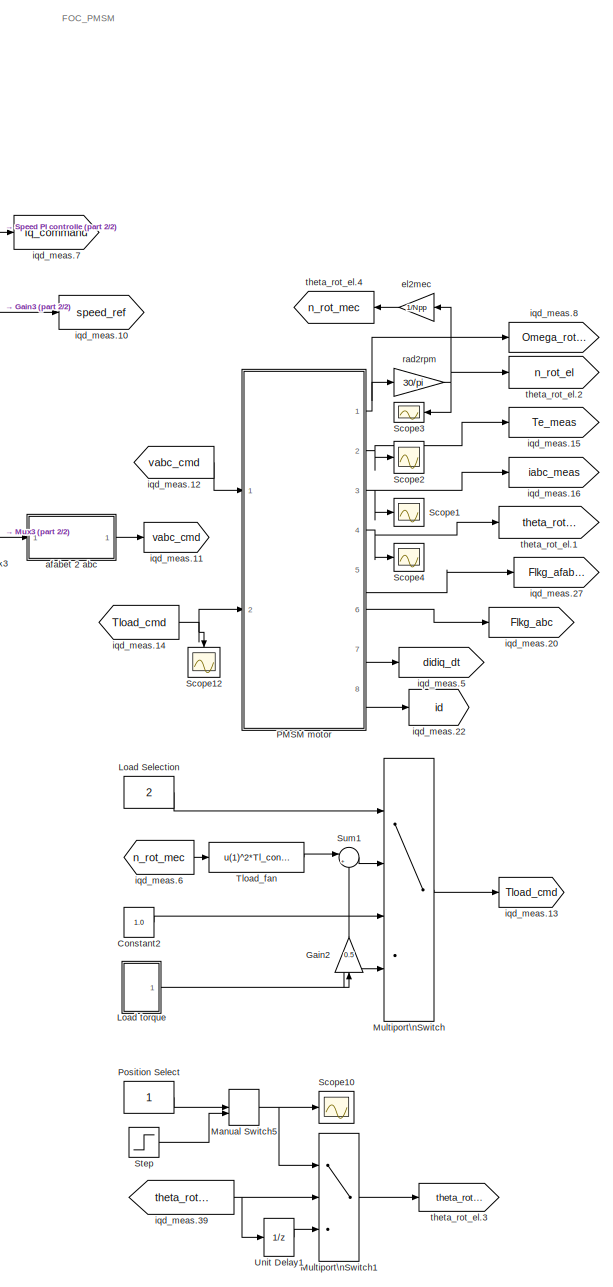
[diagram: root canvas - part 1/2, right side, full height]
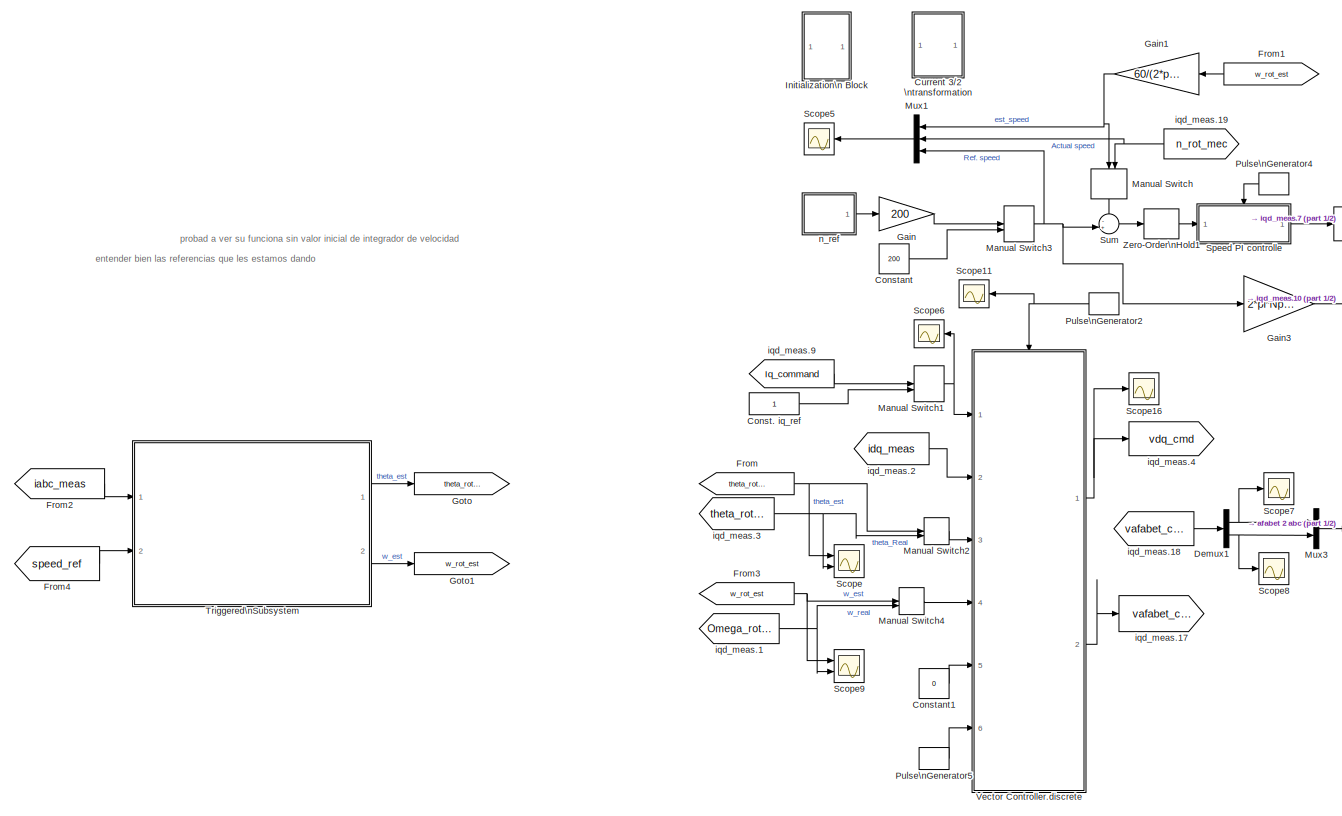
[diagram: root canvas - part 2/2, central region]
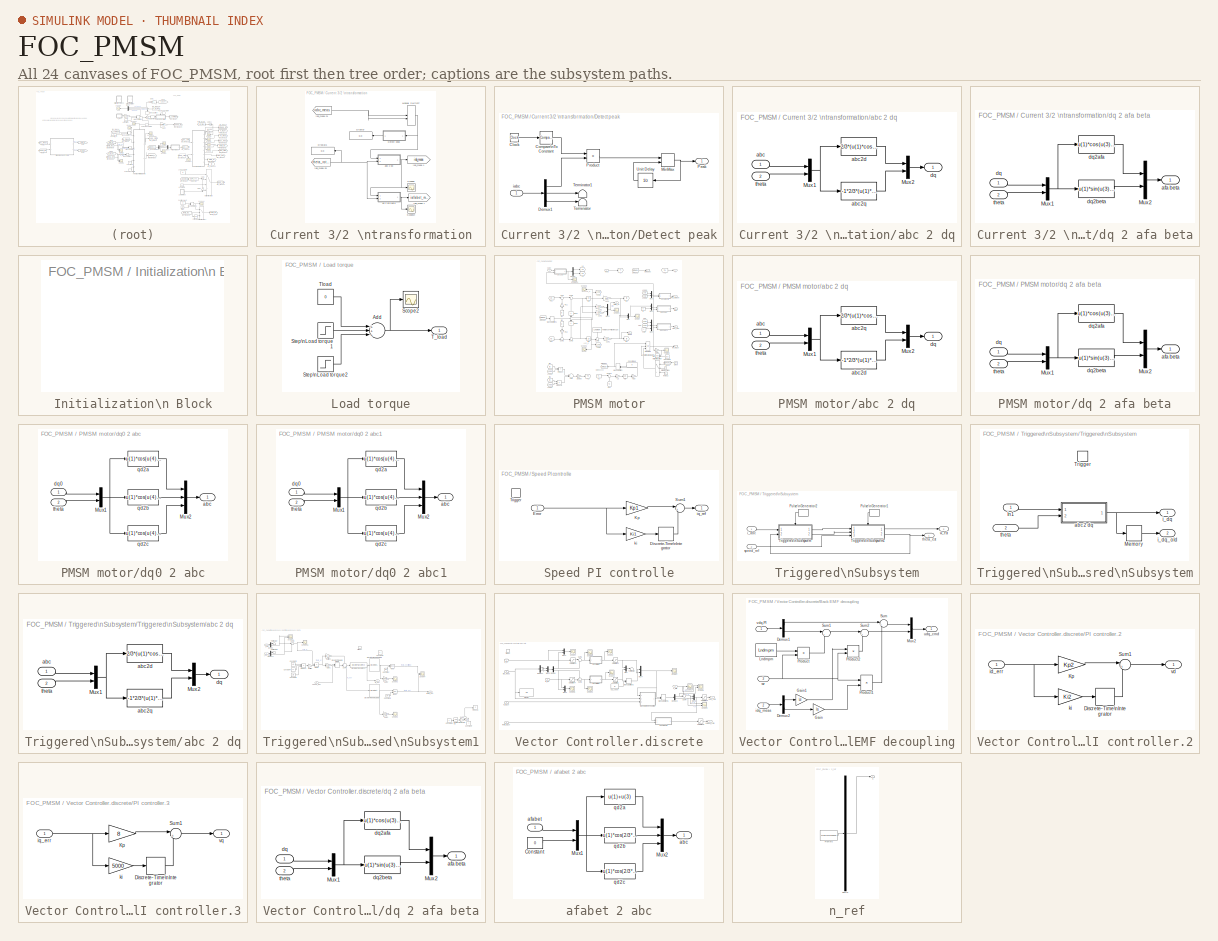
[diagram: thumbnail index - all 24 canvases of the model, root first then tree order]
MODEL FOC_PMSM
KIND model
CONFIG InitFcn = Motor_parameters_Lsrpm7fw
BLOCK [Constant] Const. iq_ref
  SID = 4
BLOCK [Constant] Constant
  SID = 5
  Value = 200
BLOCK [Constant] Constant1
  SID = 973
  Value = 0
BLOCK [Constant] Constant2
  SID = 6
  Value = 1.0
BLOCK [SubSystem] Current 3//2 \ntransformation
  Ports = []
  RequestExecContextInheritance = off
  SID = 7
BLOCK [SubSystem] Current 3//2 \ntransformation/Detect peak
  Ports = [1, 1]
  RequestExecContextInheritance = off
  SID = 11
BLOCK [Clock] Current 3//2 \ntransformation/Detect peak/Clock
  SID = 13
BLOCK [Reference] Current 3//2 \ntransformation/Detect peak/Compare\nTo Constant  REF=simulink/Logic and Bit\nOperations/Compare\nTo Constant
  OutDataTypeStr = uint8
  Ports = [1, 1]
  SID = 14
  SourceBlock = simulink/Logic and Bit\nOperations/Compare\nTo Constant
  SourceProductBaseCode = SL
  SourceProductName = Simulink
  SourceType = Compare To Constant
  ZeroCross = off
  const = 2
  relop = >=
BLOCK [Demux] Current 3//2 \ntransformation/Detect peak/Demux1
  DisplayOption = bar
  Outputs = 3
  Ports = [1, 3]
  SID = 15
BLOCK [MinMax] Current 3//2 \ntransformation/Detect peak/MinMax
  Function = max
  InputSameDT = off
  Inputs = 2
  Ports = [2, 1]
  SID = 16
  SaturateOnIntegerOverflow = off
BLOCK [Outport] Current 3//2 \ntransformation/Detect peak/Peak
  IconDisplay = Port number
  SID = 21
  VectorParamsAs1DForOutWhenUnconnected = off
BLOCK [Product] Current 3//2 \ntransformation/Detect peak/Product
  InputSameDT = off
  OutDataTypeStr = Inherit: Inherit via internal rule
  Ports = [2, 1]
  SID = 17
  SaturateOnIntegerOverflow = off
BLOCK [Terminator] Current 3//2 \ntransformation/Detect peak/Terminator
  SID = 18
BLOCK [Terminator] Current 3//2 \ntransformation/Detect peak/Terminator1
  SID = 19
BLOCK [UnitDelay] Current 3//2 \ntransformation/Detect peak/Unit Delay
  HasFrameUpgradeWarning = on
  SID = 20
  SampleTime = 1/5e3
BLOCK [Inport] Current 3//2 \ntransformation/Detect peak/iabc
  IconDisplay = Port number
  SID = 12
BLOCK [Display] Current 3//2 \ntransformation/Display
  Decimation = 1
  Ports = [1]
  SID = 27
BLOCK [Display] Current 3//2 \ntransformation/Display1
  Decimation = 1
  Ports = [1]
  SID = 2657
BLOCK [ManualSwitch] Current 3//2 \ntransformation/Manual Switch7
  CurrentSetting = 0
  SID = 28
BLOCK [Scope] Current 3//2 \ntransformation/Scope14
  Floating = off
  NumInputPorts = 1
  Ports = [1]
  SID = 34
  ScopeSpecificationString = C++SS(StrPVP('Location','[119, 56, 1049, 720]'),StrPVP('Open','off'),MxPVP('AxesTitles',54,'struct(''axes1'',''%<SignalLabel>'')'),StrPVP('ShowLegends','off'),StrPVP('YMin','-5500'),StrPVP('YMax','5500'),StrPVP('SaveName','ScopeData27'),StrPVP('DataFormat','StructureWithTime'),StrPVP('LimitDataPoints','off'),StrPVP('BlockParamSampleTime','0'),StrPVP('Decimation','1'),StrPVP('BlockParamSampleInput'...<+8ch>
BLOCK [Scope] Current 3//2 \ntransformation/Scope6
  Floating = off
  NumInputPorts = 1
  Ports = [1]
  SID = 35
  ScopeSpecificationString = C++SS(StrPVP('Location','[533, 264, 1183, 659]'),StrPVP('Open','off'),StrPVP('ZoomMode','xonly'),MxPVP('AxesTitles',54,'struct(''axes1'',''%<SignalLabel>'')'),StrPVP('ShowLegends','off'),StrPVP('SaveName','ScopeData25'),StrPVP('DataFormat','StructureWithTime'),StrPVP('LimitDataPoints','off'),StrPVP('BlockParamSampleTime','0'),StrPVP('Decimation','1'),StrPVP('BlockParamSampleInput','off'))
BLOCK [SubSystem] Current 3//2 \ntransformation/abc 2 dq
  Ports = [2, 1]
  RequestExecContextInheritance = off
  SID = 38
BLOCK [Mux] Current 3//2 \ntransformation/abc 2 dq/Mux1
  DisplayOption = bar
  Inputs = 2
  Ports = [2, 1]
  SID = 41
BLOCK [Mux] Current 3//2 \ntransformation/abc 2 dq/Mux2
  DisplayOption = bar
  Inputs = 2
  Ports = [2, 1]
  SID = 42
BLOCK [Inport] Current 3//2 \ntransformation/abc 2 dq/abc
  IconDisplay = Port number
  SID = 39
BLOCK [Fcn] Current 3//2 \ntransformation/abc 2 dq/abc2d
  Expr = 2/3*(u(1)*cos(u(4))+u(2)*cos(u(4)-2*pi/3)+u(3)*cos(u(4)-4*pi/3))
  SID = 43
BLOCK [Fcn] Current 3//2 \ntransformation/abc 2 dq/abc2q
  Expr = -1*2/3*(u(1)*sin(u(4))+u(2)*sin(u(4)-2*pi/3)+u(3)*sin(u(4)-4*pi/3))
  SID = 44
BLOCK [Outport] Current 3//2 \ntransformation/abc 2 dq/dq
  IconDisplay = Port number
  SID = 45
  VectorParamsAs1DForOutWhenUnconnected = off
BLOCK [Inport] Current 3//2 \ntransformation/abc 2 dq/theta
  IconDisplay = Port number
  Port = 2
  SID = 40
BLOCK [SubSystem] Current 3//2 \ntransformation/dq 2 afa beta
  Ports = [2, 1]
  RequestExecContextInheritance = off
  SID = 46
BLOCK [Mux] Current 3//2 \ntransformation/dq 2 afa beta/Mux1
  DisplayOption = bar
  Inputs = 2
  Ports = [2, 1]
  SID = 49
BLOCK [Mux] Current 3//2 \ntransformation/dq 2 afa beta/Mux2
  DisplayOption = bar
  Inputs = 2
  Ports = [2, 1]
  SID = 50
BLOCK [Outport] Current 3//2 \ntransformation/dq 2 afa beta/afa beta
  IconDisplay = Port number
  SID = 53
  VectorParamsAs1DForOutWhenUnconnected = off
BLOCK [Inport] Current 3//2 \ntransformation/dq 2 afa beta/dq
  IconDisplay = Port number
  SID = 47
BLOCK [Fcn] Current 3//2 \ntransformation/dq 2 afa beta/dq2afa
  Expr = u(1)*cos(u(3))-u(2)*sin(u(3))
  SID = 51
BLOCK [Fcn] Current 3//2 \ntransformation/dq 2 afa beta/dq2beta
  Expr = u(1)*sin(u(3))+u(2)*cos(u(3))
  SID = 52
BLOCK [Inport] Current 3//2 \ntransformation/dq 2 afa beta/theta
  IconDisplay = Port number
  Port = 2
  SID = 48
BLOCK [Goto] Current 3//2 \ntransformation/iqd_meas.1
  GotoTag = idq_meas
  SID = 54
  TagVisibility = global
BLOCK [From] Current 3//2 \ntransformation/iqd_meas.20
  CloseFcn = tagdialog Close
  GotoTag = theta_rot_el
  SID = 55
  TagVisibility = global
BLOCK [From] Current 3//2 \ntransformation/iqd_meas.21
  CloseFcn = tagdialog Close
  GotoTag = iabc_meas
  SID = 56
  TagVisibility = global
BLOCK [Goto] Current 3//2 \ntransformation/iqd_meas.7
  GotoTag = iafabet_meas
  SID = 58
  TagVisibility = global
BLOCK [Demux] Demux1
  DisplayOption = bar
  Outputs = 2
  Ports = [1, 2]
  SID = 3145
BLOCK [From] From
  GotoTag = theta_rot_est
  SID = 3998
BLOCK [From] From1
  GotoTag = w_rot_est
  SID = 4000
BLOCK [From] From2
  GotoTag = iabc_meas
  SID = 3951
  TagVisibility = global
BLOCK [From] From3
  GotoTag = w_rot_est
  SID = 4004
BLOCK [From] From4
  GotoTag = speed_ref
  SID = 4019
BLOCK [Gain] Gain
  Gain = 200
  OutDataTypeStr = Inherit: Inherit via internal rule
  ParamDataTypeStr = Inherit: Inherit via internal rule
  SID = 65
  SaturateOnIntegerOverflow = off
BLOCK [Gain] Gain1
  Gain = 60/(2*pi*Npp)
  OutDataTypeStr = Inherit: Inherit via internal rule
  ParamDataTypeStr = Inherit: Inherit via internal rule
  SID = 4001
  SaturateOnIntegerOverflow = off
BLOCK [Gain] Gain2
  Gain = 0.5
  OutDataTypeStr = Inherit: Inherit via internal rule
  ParamDataTypeStr = Inherit: Inherit via internal rule
  SID = 2658
  SaturateOnIntegerOverflow = off
BLOCK [Gain] Gain3
  Gain = 2*pi*Npp/60
  OutDataTypeStr = Inherit: Inherit via internal rule
  ParamDataTypeStr = Inherit: Inherit via internal rule
  SID = 4023
  SaturateOnIntegerOverflow = off
BLOCK [Goto] Goto
  GotoTag = theta_rot_est
  SID = 3997
BLOCK [Goto] Goto1
  GotoTag = w_rot_est
  SID = 3999
BLOCK [SubSystem] Initialization\n Block
  Ports = []
  RequestExecContextInheritance = off
  SID = 3139
BLOCK [Constant] Load Selection
  SID = 66
  Value = 2
BLOCK [SubSystem] Load torque
  Ports = [0, 1]
  RequestExecContextInheritance = off
  SID = 67
BLOCK [Sum] Load torque/Add
  InputSameDT = off
  Inputs = +++
  OutDataTypeStr = Inherit: Inherit via internal rule
  Ports = [3, 1]
  SID = 68
  SaturateOnIntegerOverflow = off
BLOCK [Scope] Load torque/Scope2
  Floating = off
  NumInputPorts = 1
  Ports = [1]
  SID = 69
  ScopeSpecificationString = Simulink.scopes.TimeScopeBlockCfg('CurrentConfiguration', extmgr.ConfigurationSet(extmgr.Configuration('Core','General UI',true),extmgr.Configuration('Core','Source UI',true),extmgr.Configuration('Sources','WiredSimulink',true,'DataLoggingVariableName','ScopeData17','DataLoggingSaveFormat','StructureWithTime','DataLoggingDecimation','1','DataLoggingDecimateData',true),extmgr.Configuration('Visuals...<+1610ch>
BLOCK [Step] Load torque/Step\nLoad torque 1
  After = Trat
  SID = 70
  SampleTime = 0
  Time = 2
BLOCK [Step] Load torque/Step\nLoad torque2
  After = -Trat/2
  SID = 71
  SampleTime = 0
  Time = 4
BLOCK [Outport] Load torque/T_load
  IconDisplay = Port number
  SID = 73
  VectorParamsAs1DForOutWhenUnconnected = off
BLOCK [Constant] Load torque/Tload
  SID = 72
  Value = 0
BLOCK [ManualSwitch] Manual Switch
  CurrentSetting = 0
  SID = 4002
BLOCK [ManualSwitch] Manual Switch1
  SID = 74
BLOCK [ManualSwitch] Manual Switch2
  CurrentSetting = 0
  SID = 4003
BLOCK [ManualSwitch] Manual Switch3
  CurrentSetting = 0
  SID = 76
BLOCK [ManualSwitch] Manual Switch4
  CurrentSetting = 0
  SID = 4005
BLOCK [ManualSwitch] Manual Switch5
  SID = 78
BLOCK [MultiPortSwitch] Multiport\nSwitch
  InputSameDT = off
  Ports = [4, 1]
  SID = 79
  SaturateOnIntegerOverflow = off
BLOCK [MultiPortSwitch] Multiport\nSwitch1
  InputSameDT = off
  Inputs = 2
  Ports = [3, 1]
  SID = 80
  SaturateOnIntegerOverflow = off
BLOCK [Mux] Mux1
  DisplayOption = bar
  Inputs = 3
  Ports = [3, 1]
  SID = 81
BLOCK [Mux] Mux3
  DisplayOption = bar
  Inputs = 2
  Ports = [2, 1]
  SID = 3147
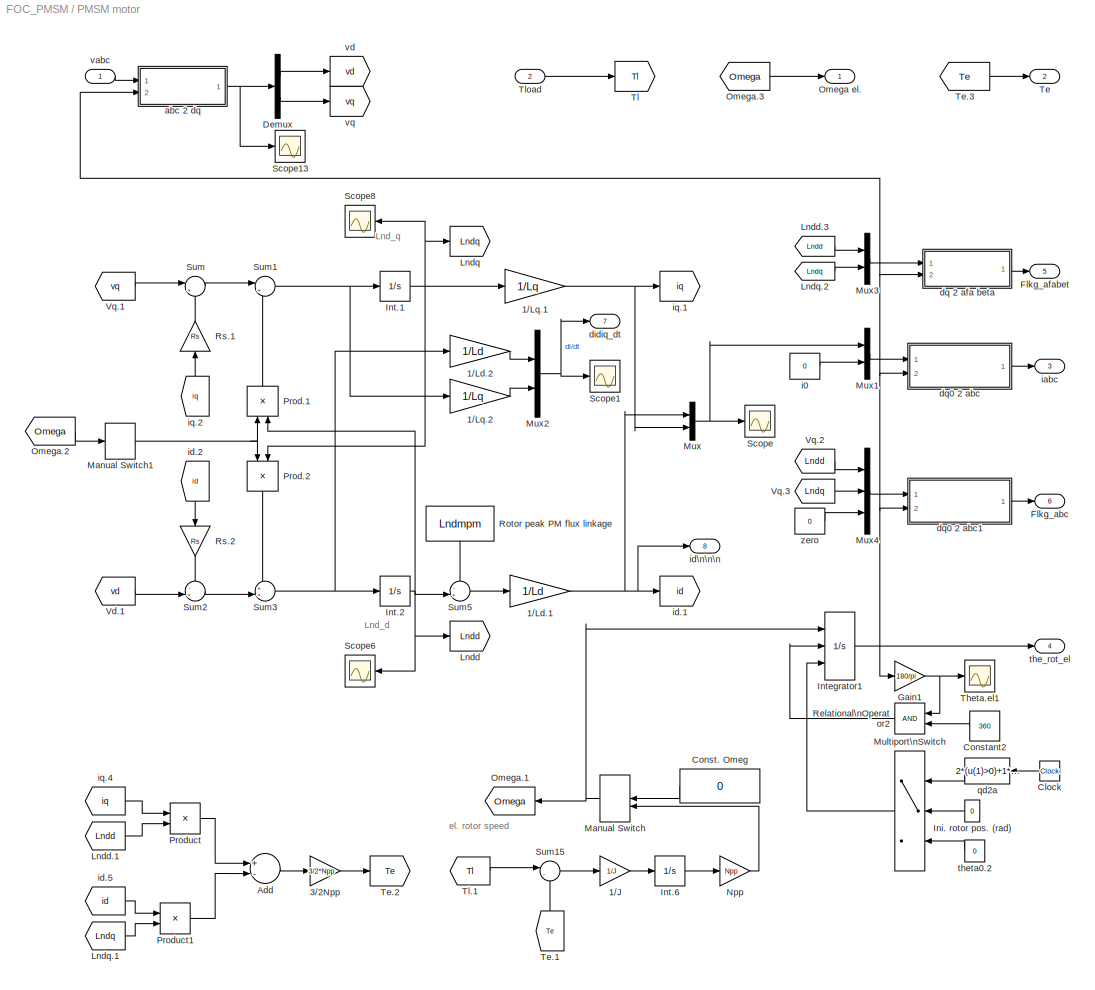
BLOCK [SubSystem] PMSM motor
  Ports = [2, 8]
  RequestExecContextInheritance = off
  SID = 2998
BLOCK [Gain] PMSM motor/1//J
  Gain = 1/J
  OutDataTypeStr = Inherit: Inherit via internal rule
  ParamDataTypeStr = Inherit: Inherit via internal rule
  SID = 3001
  SaturateOnIntegerOverflow = off
BLOCK [Gain] PMSM motor/1//Ld.1
  Gain = 1/Ld
  OutDataTypeStr = Inherit: Inherit via internal rule
  ParamDataTypeStr = Inherit: Inherit via internal rule
  SID = 3002
  SaturateOnIntegerOverflow = off
BLOCK [Gain] PMSM motor/1//Ld.2
  Gain = 1/Ld
  OutDataTypeStr = Inherit: Inherit via internal rule
  ParamDataTypeStr = Inherit: Inherit via internal rule
  SID = 3003
  SaturateOnIntegerOverflow = off
BLOCK [Gain] PMSM motor/1//Lq.1
  Gain = 1/Lq
  OutDataTypeStr = Inherit: Inherit via internal rule
  ParamDataTypeStr = Inherit: Inherit via internal rule
  SID = 3004
  SaturateOnIntegerOverflow = off
BLOCK [Gain] PMSM motor/1//Lq.2
  Gain = 1/Lq
  OutDataTypeStr = Inherit: Inherit via internal rule
  ParamDataTypeStr = Inherit: Inherit via internal rule
  SID = 3005
  SaturateOnIntegerOverflow = off
BLOCK [Gain] PMSM motor/3//2Npp
  Gain = 3/2*Npp
  OutDataTypeStr = Inherit: Inherit via internal rule
  ParamDataTypeStr = Inherit: Inherit via internal rule
  SID = 3006
  SaturateOnIntegerOverflow = off
BLOCK [Sum] PMSM motor/Add
  InputSameDT = off
  Inputs = +-
  OutDataTypeStr = Inherit: Inherit via internal rule
  Ports = [2, 1]
  SID = 3007
  SaturateOnIntegerOverflow = off
BLOCK [Clock] PMSM motor/Clock
  SID = 3140
BLOCK [Constant] PMSM motor/Const. Omeg
  SID = 3008
  Value = 0
BLOCK [Constant] PMSM motor/Constant2
  SID = 3010
  Value = 360
BLOCK [Demux] PMSM motor/Demux
  DisplayOption = bar
  Outputs = 2
  Ports = [1, 2]
  SID = 3011
BLOCK [Outport] PMSM motor/Flkg_abc
  IconDisplay = Port number
  Port = 6
  SID = 3118
  VectorParamsAs1DForOutWhenUnconnected = off
BLOCK [Outport] PMSM motor/Flkg_afabet
  IconDisplay = Port number
  Port = 5
  SID = 3117
  VectorParamsAs1DForOutWhenUnconnected = off
BLOCK [Gain] PMSM motor/Gain1
  Gain = 180/pi
  OutDataTypeStr = Inherit: Inherit via internal rule
  ParamDataTypeStr = Inherit: Inherit via internal rule
  SID = 3012
  SaturateOnIntegerOverflow = off
BLOCK [Constant] PMSM motor/Ini. rotor pos. (rad)
  SID = 3143
  Value = 0
BLOCK [Integrator] PMSM motor/Int.1
  Ports = [1, 1]
  SID = 3014
BLOCK [Integrator] PMSM motor/Int.2
  InitialCondition = Lndd_ini
  Ports = [1, 1]
  SID = 3015
BLOCK [Integrator] PMSM motor/Int.6
  InitialCondition = Omegae_ini/Npp
  Ports = [1, 1]
  SID = 3016
BLOCK [Integrator] PMSM motor/Integrator1
  ExternalReset = rising
  InitialCondition = pi/3
  InitialConditionSource = external
  Ports = [3, 1]
  SID = 3017
BLOCK [Goto] PMSM motor/Lndd
  GotoTag = Lndd
  SID = 3018
BLOCK [From] PMSM motor/Lndd.1
  CloseFcn = tagdialog Close
  GotoTag = Lndd
  SID = 3019
BLOCK [From] PMSM motor/Lndd.3
  CloseFcn = tagdialog Close
  GotoTag = Lndd
  SID = 3021
BLOCK [Goto] PMSM motor/Lndq
  GotoTag = Lndq
  SID = 3022
BLOCK [From] PMSM motor/Lndq.1
  CloseFcn = tagdialog Close
  GotoTag = Lndq
  SID = 3023
BLOCK [From] PMSM motor/Lndq.2
  CloseFcn = tagdialog Close
  GotoTag = Lndq
  SID = 3024
BLOCK [ManualSwitch] PMSM motor/Manual Switch
  CurrentSetting = 0
  SID = 3026
BLOCK [ManualSwitch] PMSM motor/Manual Switch1
  SID = 3850
BLOCK [MultiPortSwitch] PMSM motor/Multiport\nSwitch
  InputSameDT = off
  Inputs = 2
  Ports = [3, 1]
  SID = 3141
  SaturateOnIntegerOverflow = off
BLOCK [Mux] PMSM motor/Mux
  DisplayOption = bar
  Inputs = 2
  Ports = [2, 1]
  SID = 3027
BLOCK [Mux] PMSM motor/Mux1
  DisplayOption = bar
  Inputs = 2
  Ports = [2, 1]
  SID = 3028
BLOCK [Mux] PMSM motor/Mux2
  DisplayOption = bar
  Inputs = 2
  Ports = [2, 1]
  SID = 3029
BLOCK [Mux] PMSM motor/Mux3
  DisplayOption = bar
  Inputs = 2
  Ports = [2, 1]
  SID = 3030
BLOCK [Mux] PMSM motor/Mux4
  DisplayOption = bar
  Inputs = 3
  Ports = [3, 1]
  SID = 3031
BLOCK [Gain] PMSM motor/Npp
  Gain = Npp
  OutDataTypeStr = Inherit: Inherit via internal rule
  ParamDataTypeStr = Inherit: Inherit via internal rule
  SID = 3032
  SaturateOnIntegerOverflow = off
BLOCK [Outport] PMSM motor/Omega el.
  IconDisplay = Port number
  SID = 3113
  VectorParamsAs1DForOutWhenUnconnected = off
BLOCK [Goto] PMSM motor/Omega.1
  GotoTag = Omega
  SID = 3033
BLOCK [From] PMSM motor/Omega.2
  CloseFcn = tagdialog Close
  GotoTag = Omega
  SID = 3034
BLOCK [From] PMSM motor/Omega.3
  CloseFcn = tagdialog Close
  GotoTag = Omega
  SID = 3035
BLOCK [Product] PMSM motor/Prod.1
  InputSameDT = off
  OutDataTypeStr = Inherit: Inherit via internal rule
  Ports = [2, 1]
  SID = 3037
  SaturateOnIntegerOverflow = off
BLOCK [Product] PMSM motor/Prod.2
  InputSameDT = off
  OutDataTypeStr = Inherit: Inherit via internal rule
  Ports = [2, 1]
  SID = 3038
  SaturateOnIntegerOverflow = off
BLOCK [Product] PMSM motor/Product
  InputSameDT = off
  OutDataTypeStr = Inherit: Inherit via internal rule
  Ports = [2, 1]
  SID = 3039
  SaturateOnIntegerOverflow = off
BLOCK [Product] PMSM motor/Product1
  InputSameDT = off
  OutDataTypeStr = Inherit: Inherit via internal rule
  Ports = [2, 1]
  SID = 3040
  SaturateOnIntegerOverflow = off
BLOCK [RelationalOperator] PMSM motor/Relational\nOperator2
  InputSameDT = off
  OutDataTypeStr = boolean
  Ports = [2, 1]
  SID = 3042
BLOCK [Constant] PMSM motor/Rotor peak PM flux linkage
  SID = 3043
  Value = Lndmpm
BLOCK [Gain] PMSM motor/Rs.1
  Gain = Rs
  OutDataTypeStr = Inherit: Inherit via internal rule
  ParamDataTypeStr = Inherit: Inherit via internal rule
  SID = 3044
  SaturateOnIntegerOverflow = off
BLOCK [Gain] PMSM motor/Rs.2
  Gain = Rs
  OutDataTypeStr = Inherit: Inherit via internal rule
  ParamDataTypeStr = Inherit: Inherit via internal rule
  SID = 3045
  SaturateOnIntegerOverflow = off
BLOCK [Scope] PMSM motor/Scope
  Floating = off
  NumInputPorts = 1
  Ports = [1]
  SID = 3046
  ScopeSpecificationString = C++SS(StrPVP('Location','[357, 219, 1019, 566]'),StrPVP('Open','off'),StrPVP('ZoomMode','xonly'),MxPVP('AxesTitles',54,'struct(''axes1'',''%<SignalLabel>'')'),MxPVP('ScopeGraphics',57,'struct(''FigureColor'',''[0.5 0.5 0.5]'',''AxesColor'',''[0 0 0]'',''AxesTickColor'',''[1 1 1]'',''LineColors'',''[1 1 0;1 0 1;0 1 1;1 0 0;0 1 0;0 0 1]'',''LineStyles'',''-|-|-|-|-|-'',''LineWidths'',''[0.5 0.5 0.5 ...<+370ch>
BLOCK [Scope] PMSM motor/Scope1
  Floating = off
  NumInputPorts = 1
  Ports = [1]
  SID = 3047
  ScopeSpecificationString = C++SS(StrPVP('Location','[190, 170, 1046, 653]'),StrPVP('Open','off'),StrPVP('ZoomMode','yonly'),MxPVP('AxesTitles',54,'struct(''axes1'',''%<SignalLabel>'')'),MxPVP('ScopeGraphics',57,'struct(''FigureColor'',''[0.5 0.5 0.5]'',''AxesColor'',''[0 0 0]'',''AxesTickColor'',''[1 1 1]'',''LineColors'',''[1 1 0;1 0 1;0 1 1;1 0 0;0 1 0;0 0 1]'',''LineStyles'',''-|-|-|-|-|-'',''LineWidths'',''[0.5 0.5 0.5 ...<+367ch>
BLOCK [Scope] PMSM motor/Scope13
  Floating = off
  NumInputPorts = 1
  Ports = [1]
  SID = 3048
  ScopeSpecificationString = Simulink.scopes.TimeScopeBlockCfg('CurrentConfiguration', extmgr.ConfigurationSet(extmgr.Configuration('Core','General UI',true),extmgr.Configuration('Core','Source UI',true),extmgr.Configuration('Sources','WiredSimulink',true,'DataLoggingVariableName','ScopeData24','DataLoggingSaveFormat','StructureWithTime','DataLoggingDecimation','1','DataLoggingDecimateData',true),extmgr.Configuration('Visuals...<+1723ch>
BLOCK [Scope] PMSM motor/Scope6
  Floating = off
  NumInputPorts = 1
  Ports = [1]
  SID = 3050
  ScopeSpecificationString = C++SS(StrPVP('Location','[430, 222, 984, 607]'),StrPVP('Open','off'),MxPVP('AxesTitles',54,'struct(''axes1'',''%<SignalLabel>'')'),StrPVP('ShowLegends','off'),StrPVP('TimeRange','0.35'),StrPVP('YMin','-2e-005'),StrPVP('YMax','2.25e-005'),StrPVP('SaveName','ScopeData11'),StrPVP('DataFormat','StructureWithTime'),StrPVP('LimitDataPoints','off'),StrPVP('BlockParamSampleTime','0'),StrPVP('Decimation','...<+42ch>
BLOCK [Scope] PMSM motor/Scope8
  Floating = off
  NumInputPorts = 1
  Ports = [1]
  SID = 3051
  ScopeSpecificationString = C++SS(StrPVP('Location','[8, 56, 670, 485]'),StrPVP('Open','off'),StrPVP('ZoomMode','yonly'),MxPVP('AxesTitles',54,'struct(''axes1'',''%<SignalLabel>'')'),StrPVP('ShowLegends','off'),StrPVP('TimeRange','35'),StrPVP('YMin','0.997'),StrPVP('YMax','1.005'),StrPVP('SaveName','ScopeData12'),StrPVP('DataFormat','StructureWithTime'),StrPVP('LimitDataPoints','off'),StrPVP('BlockParamSampleTime','0'),StrPV...<+58ch>
BLOCK [Sum] PMSM motor/Sum
  IconShape = round
  InputSameDT = off
  Inputs = |+-
  OutDataTypeStr = Inherit: Inherit via internal rule
  Ports = [2, 1]
  SID = 3052
  SaturateOnIntegerOverflow = off
BLOCK [Sum] PMSM motor/Sum1
  IconShape = round
  InputSameDT = off
  Inputs = |+-
  OutDataTypeStr = Inherit: Inherit via internal rule
  Ports = [2, 1]
  SID = 3053
  SaturateOnIntegerOverflow = off
BLOCK [Sum] PMSM motor/Sum15
  IconShape = round
  InputSameDT = off
  Inputs = |-+
  OutDataTypeStr = Inherit: Inherit via internal rule
  Ports = [2, 1]
  SID = 3054
  SaturateOnIntegerOverflow = off
BLOCK [Sum] PMSM motor/Sum2
  IconShape = round
  InputSameDT = off
  Inputs = -+|
  OutDataTypeStr = Inherit: Inherit via internal rule
  Ports = [2, 1]
  SID = 3055
  SaturateOnIntegerOverflow = off
BLOCK [Sum] PMSM motor/Sum3
  IconShape = round
  InputSameDT = off
  Inputs = ++|
  OutDataTypeStr = Inherit: Inherit via internal rule
  Ports = [2, 1]
  SID = 3056
  SaturateOnIntegerOverflow = off
BLOCK [Sum] PMSM motor/Sum5
  IconShape = round
  InputSameDT = off
  Inputs = -+|
  OutDataTypeStr = Inherit: Inherit via internal rule
  Ports = [2, 1]
  SID = 3057
  SaturateOnIntegerOverflow = off
BLOCK [Outport] PMSM motor/Te
  IconDisplay = Port number
  Port = 2
  SID = 3114
  VectorParamsAs1DForOutWhenUnconnected = off
BLOCK [From] PMSM motor/Te.1
  CloseFcn = tagdialog Close
  GotoTag = Te
  SID = 3058
BLOCK [Goto] PMSM motor/Te.2
  GotoTag = Te
  SID = 3059
BLOCK [From] PMSM motor/Te.3
  CloseFcn = tagdialog Close
  GotoTag = Te
  SID = 3060
BLOCK [Scope] PMSM motor/Theta.el1
  Floating = off
  NumInputPorts = 1
  Ports = [1]
  SID = 3061
  ScopeSpecificationString = C++SS(StrPVP('Location','[8, 60, 629, 554]'),StrPVP('Open','off'),MxPVP('AxesTitles',54,'struct(''axes1'',''%<SignalLabel>'')'),MxPVP('ScopeGraphics',57,'struct(''FigureColor'',''[0.5 0.5 0.5]'',''AxesColor'',''[0 0 0]'',''AxesTickColor'',''[1 1 1]'',''LineColors'',''[1 1 0;1 0 1;0 1 1;1 0 0;0 1 0;0 0 1]'',''LineStyles'',''-|-|-|-|-|-'',''LineWidths'',''[0.5 0.5 0.5 0.5 0.5 0.5]'',''MarkerStyles''...<+279ch>
BLOCK [Goto] PMSM motor/Tl
  GotoTag = Tl
  SID = 3063
BLOCK [From] PMSM motor/Tl.1
  CloseFcn = tagdialog Close
  GotoTag = Tl
  SID = 3064
BLOCK [Inport] PMSM motor/Tload
  IconDisplay = Port number
  Port = 2
  SID = 3000
BLOCK [From] PMSM motor/Vd.1
  CloseFcn = tagdialog Close
  GotoTag = vd
  SID = 3065
BLOCK [From] PMSM motor/Vq.1
  CloseFcn = tagdialog Close
  GotoTag = vq
  SID = 3066
BLOCK [From] PMSM motor/Vq.2
  CloseFcn = tagdialog Close
  GotoTag = Lndd
  SID = 3067
BLOCK [From] PMSM motor/Vq.3
  CloseFcn = tagdialog Close
  GotoTag = Lndq
  SID = 3068
BLOCK [SubSystem] PMSM motor/abc 2 dq
  Ports = [2, 1]
  RequestExecContextInheritance = off
  SID = 3069
BLOCK [Mux] PMSM motor/abc 2 dq/Mux1
  DisplayOption = bar
  Inputs = 2
  Ports = [2, 1]
  SID = 3072
BLOCK [Mux] PMSM motor/abc 2 dq/Mux2
  DisplayOption = bar
  Inputs = 2
  Ports = [2, 1]
  SID = 3073
BLOCK [Inport] PMSM motor/abc 2 dq/abc
  IconDisplay = Port number
  SID = 3070
BLOCK [Fcn] PMSM motor/abc 2 dq/abc2d
  Expr = -1*2/3*(u(1)*sin(u(4))+u(2)*sin(u(4)-2*pi/3)+u(3)*sin(u(4)-4*pi/3))
  SID = 3074
BLOCK [Fcn] PMSM motor/abc 2 dq/abc2q
  Expr = 2/3*(u(1)*cos(u(4))+u(2)*cos(u(4)-2*pi/3)+u(3)*cos(u(4)-4*pi/3))
  SID = 3075
BLOCK [Outport] PMSM motor/abc 2 dq/dq
  IconDisplay = Port number
  SID = 3076
  VectorParamsAs1DForOutWhenUnconnected = off
BLOCK [Inport] PMSM motor/abc 2 dq/theta
  IconDisplay = Port number
  Port = 2
  SID = 3071
BLOCK [Outport] PMSM motor/didiq_dt
  IconDisplay = Port number
  Port = 7
  SID = 3119
  VectorParamsAs1DForOutWhenUnconnected = off
BLOCK [SubSystem] PMSM motor/dq 2 afa beta
  Ports = [2, 1]
  RequestExecContextInheritance = off
  SID = 3077
BLOCK [Mux] PMSM motor/dq 2 afa beta/Mux1
  DisplayOption = bar
  Inputs = 2
  Ports = [2, 1]
  SID = 3080
BLOCK [Mux] PMSM motor/dq 2 afa beta/Mux2
  DisplayOption = bar
  Inputs = 2
  Ports = [2, 1]
  SID = 3081
BLOCK [Outport] PMSM motor/dq 2 afa beta/afa beta
  IconDisplay = Port number
  SID = 3084
  VectorParamsAs1DForOutWhenUnconnected = off
BLOCK [Inport] PMSM motor/dq 2 afa beta/dq
  IconDisplay = Port number
  SID = 3078
BLOCK [Fcn] PMSM motor/dq 2 afa beta/dq2afa
  Expr = u(1)*cos(u(3))-u(2)*sin(u(3))
  SID = 3082
BLOCK [Fcn] PMSM motor/dq 2 afa beta/dq2beta
  Expr = u(1)*sin(u(3))+u(2)*cos(u(3))
  SID = 3083
BLOCK [Inport] PMSM motor/dq 2 afa beta/theta
  IconDisplay = Port number
  Port = 2
  SID = 3079
BLOCK [SubSystem] PMSM motor/dq0 2 abc
  Ports = [2, 1]
  RequestExecContextInheritance = off
  SID = 3085
BLOCK [Mux] PMSM motor/dq0 2 abc/Mux1
  DisplayOption = bar
  Inputs = 2
  Ports = [2, 1]
  SID = 3088
BLOCK [Mux] PMSM motor/dq0 2 abc/Mux2
  DisplayOption = bar
  Inputs = 3
  Ports = [3, 1]
  SID = 3089
BLOCK [Outport] PMSM motor/dq0 2 abc/abc
  IconDisplay = Port number
  SID = 3093
  VectorParamsAs1DForOutWhenUnconnected = off
BLOCK [Inport] PMSM motor/dq0 2 abc/dq0
  IconDisplay = Port number
  SID = 3086
BLOCK [Fcn] PMSM motor/dq0 2 abc/qd2a
  Expr = u(1)*cos(u(4))-u(2)*sin(u(4))+u(3)
  SID = 3090
BLOCK [Fcn] PMSM motor/dq0 2 abc/qd2b
  Expr = u(1)*cos(u(4)-2/3*pi)-u(2)*sin(u(4)-2/3*pi)+u(3)
  SID = 3091
BLOCK [Fcn] PMSM motor/dq0 2 abc/qd2c
  Expr = u(1)*cos(u(4)+2/3*pi)-u(2)*sin(u(4)+2/3*pi)+u(3)
  SID = 3092
BLOCK [Inport] PMSM motor/dq0 2 abc/theta
  IconDisplay = Port number
  Port = 2
  SID = 3087
BLOCK [SubSystem] PMSM motor/dq0 2 abc1
  Ports = [2, 1]
  RequestExecContextInheritance = off
  SID = 3094
BLOCK [Mux] PMSM motor/dq0 2 abc1/Mux1
  DisplayOption = bar
  Inputs = 2
  Ports = [2, 1]
  SID = 3097
BLOCK [Mux] PMSM motor/dq0 2 abc1/Mux2
  DisplayOption = bar
  Inputs = 3
  Ports = [3, 1]
  SID = 3098
BLOCK [Outport] PMSM motor/dq0 2 abc1/abc
  IconDisplay = Port number
  SID = 3102
  VectorParamsAs1DForOutWhenUnconnected = off
BLOCK [Inport] PMSM motor/dq0 2 abc1/dq0
  IconDisplay = Port number
  SID = 3095
BLOCK [Fcn] PMSM motor/dq0 2 abc1/qd2a
  Expr = u(1)*cos(u(4))-u(2)*sin(u(4))+u(3)
  SID = 3099
BLOCK [Fcn] PMSM motor/dq0 2 abc1/qd2b
  Expr = u(1)*cos(u(4)-2/3*pi)-u(2)*sin(u(4)-2/3*pi)+u(3)
  SID = 3100
BLOCK [Fcn] PMSM motor/dq0 2 abc1/qd2c
  Expr = u(1)*cos(u(4)+2/3*pi)-u(2)*sin(u(4)+2/3*pi)+u(3)
  SID = 3101
BLOCK [Inport] PMSM motor/dq0 2 abc1/theta
  IconDisplay = Port number
  Port = 2
  SID = 3096
BLOCK [Constant] PMSM motor/i0
  SID = 3103
  Value = 0
BLOCK [Outport] PMSM motor/iabc
  IconDisplay = Port number
  Port = 3
  SID = 3115
  VectorParamsAs1DForOutWhenUnconnected = off
BLOCK [Goto] PMSM motor/id.1
  GotoTag = id
  SID = 3104
BLOCK [From] PMSM motor/id.2
  CloseFcn = tagdialog Close
  GotoTag = id
  SID = 3105
BLOCK [From] PMSM motor/id.5
  CloseFcn = tagdialog Close
  GotoTag = id
  SID = 3106
BLOCK [Outport] PMSM motor/id\n\n\n
  IconDisplay = Port number
  Port = 8
  SID = 3852
  VectorParamsAs1DForOutWhenUnconnected = off
BLOCK [Goto] PMSM motor/iq.1
  GotoTag = iq
  SID = 3107
BLOCK [From] PMSM motor/iq.2
  CloseFcn = tagdialog Close
  GotoTag = iq
  SID = 3108
BLOCK [From] PMSM motor/iq.4
  CloseFcn = tagdialog Close
  GotoTag = iq
  SID = 3109
BLOCK [Fcn] PMSM motor/qd2a
  Expr = 2*(u(1)>0)+1*(u(1)==0)
  SID = 3142
BLOCK [Outport] PMSM motor/the_rot_el
  IconDisplay = Port number
  Port = 4
  SID = 3116
  VectorParamsAs1DForOutWhenUnconnected = off
BLOCK [Constant] PMSM motor/theta0.2
  SID = 3144
  Value = 0
BLOCK [Inport] PMSM motor/vabc
  IconDisplay = Port number
  SID = 2999
BLOCK [Goto] PMSM motor/vd
  GotoTag = vd
  SID = 3110
BLOCK [Goto] PMSM motor/vq
  GotoTag = vq
  SID = 3111
BLOCK [Constant] PMSM motor/zero
  SID = 3112
  Value = 0
BLOCK [Constant] Position Select
  SID = 182
BLOCK [DiscretePulseGenerator] Pulse\nGenerator2
  Period = 1/fs
  Ports = [0, 1]
  PulseType = Time based
  PulseWidth = 50
  SID = 184
BLOCK [DiscretePulseGenerator] Pulse\nGenerator4
  Period = 1/fs*2
  Ports = [0, 1]
  PulseType = Time based
  PulseWidth = 50
  SID = 975
BLOCK [DiscretePulseGenerator] Pulse\nGenerator5
  Amplitude = Vm
  Period = 2/fs
  PhaseDelay = 1/fs
  Ports = [0, 1]
  PulseType = Time based
  PulseWidth = 50
  SID = 3892
BLOCK [Scope] Scope
  Floating = off
  NumInputPorts = 2
  Ports = [2]
  SID = 3869
  ScopeSpecificationString = Simulink.scopes.TimeScopeBlockCfg('CurrentConfiguration', extmgr.ConfigurationSet(extmgr.Configuration('Core','General UI',true),extmgr.Configuration('Core','Source UI',true),extmgr.Configuration('Sources','WiredSimulink',true,'DataLoggingVariableName','ScopeData3'),extmgr.Configuration('Visuals','Time Domain',true,'SerializedDisplays',{struct('MinYLimReal','-0.78567','MaxYLimReal','7.06861','YLab...<+1524ch>
BLOCK [Scope] Scope1
  Floating = off
  NumInputPorts = 1
  Ports = [1]
  SID = 3123
  ScopeSpecificationString = Simulink.scopes.TimeScopeBlockCfg('CurrentConfiguration', extmgr.ConfigurationSet(extmgr.Configuration('Core','General UI',true),extmgr.Configuration('Core','Source UI',true),extmgr.Configuration('Sources','WiredSimulink',true,'DataLoggingVariableName','ScopeData6','DataLoggingSaveFormat','StructureWithTime','DataLoggingDecimation','1','DataLoggingDecimateData',true),extmgr.Configuration('Visuals'...<+1819ch>
BLOCK [Scope] Scope10
  Floating = off
  NumInputPorts = 1
  Ports = [1]
  SID = 821
  ScopeSpecificationString = C++SS(StrPVP('Location','[24, 90, 674, 485]'),StrPVP('Open','off'),StrPVP('ZoomMode','xonly'),MxPVP('AxesTitles',54,'struct(''axes1'',''%<SignalLabel>'')'),MxPVP('ScopeGraphics',57,'struct(''FigureColor'',''[0.5 0.5 0.5]'',''AxesColor'',''[0 0 0]'',''AxesTickColor'',''[1 1 1]'',''LineColors'',''[1 1 0;1 0 1;0 1 1;1 0 0;0 1 0;0 0 1]'',''LineStyles'',''-|-|-|-|-|-'',''LineWidths'',''[0.5 0.5 0.5 0.5...<+362ch>
BLOCK [Scope] Scope11
  Floating = off
  NumInputPorts = 1
  Ports = [1]
  SID = 4026
  ScopeSpecificationString = Simulink.scopes.TimeScopeBlockCfg('CurrentConfiguration', extmgr.ConfigurationSet(extmgr.Configuration('Core','General UI',true),extmgr.Configuration('Core','Source UI',true),extmgr.Configuration('Sources','WiredSimulink',true,'DataLoggingVariableName','ScopeData3','DataLoggingSaveFormat','StructureWithTime','DataLoggingDecimation','1','DataLoggingDecimateData',true),extmgr.Configuration('Visuals'...<+1796ch>
BLOCK [Scope] Scope12
  Floating = off
  NumInputPorts = 1
  Ports = [1]
  SID = 3124
  ScopeSpecificationString = Simulink.scopes.TimeScopeBlockCfg('CurrentConfiguration', extmgr.ConfigurationSet(extmgr.Configuration('Core','General UI',true),extmgr.Configuration('Core','Source UI',true),extmgr.Configuration('Sources','WiredSimulink',true,'DataLoggingVariableName','ScopeData9','DataLoggingSaveFormat','StructureWithTime','DataLoggingDecimation','1','DataLoggingDecimateData',true),extmgr.Configuration('Visuals'...<+1685ch>
BLOCK [Scope] Scope16
  Floating = off
  NumInputPorts = 1
  Ports = [1]
  SID = 3897
  ScopeSpecificationString = Simulink.scopes.TimeScopeBlockCfg('CurrentConfiguration', extmgr.ConfigurationSet(extmgr.Configuration('Core','General UI',true),extmgr.Configuration('Core','Source UI',true),extmgr.Configuration('Sources','WiredSimulink',true,'DataLoggingVariableName','ScopeData5'),extmgr.Configuration('Visuals','Time Domain',true,'SerializedDisplays',{struct('MinYLimReal','-50.06446','MaxYLimReal','95.2757','YLa...<+1524ch>
BLOCK [Scope] Scope2
  Floating = off
  NumInputPorts = 1
  Ports = [1]
  SID = 3125
  ScopeSpecificationString = Simulink.scopes.TimeScopeBlockCfg('CurrentConfiguration', extmgr.ConfigurationSet(extmgr.Configuration('Core','General UI',true),extmgr.Configuration('Core','Source UI',true),extmgr.Configuration('Sources','WiredSimulink',true,'DataLoggingVariableName','ScopeData4','DataLoggingSaveFormat','StructureWithTime','DataLoggingDecimation','1','DataLoggingDecimateData',true),extmgr.Configuration('Visuals'...<+1746ch>
BLOCK [Scope] Scope3
  Floating = off
  NumInputPorts = 1
  Ports = [1]
  SID = 3127
  ScopeSpecificationString = C++SS(StrPVP('Location','[525, 297, 1175, 692]'),StrPVP('Open','off'),MxPVP('AxesTitles',54,'struct(''axes1'',''%<SignalLabel>'')'),MxPVP('ScopeGraphics',57,'struct(''FigureColor'',''[0.5 0.5 0.5]'',''AxesColor'',''[0 0 0]'',''AxesTickColor'',''[1 1 1]'',''LineColors'',''[1 1 0;1 0 1;0 1 1;1 0 0;0 1 0;0 0 1]'',''LineStyles'',''-|-|-|-|-|-'',''LineWidths'',''[0.5 0.5 0.5 0.5 0.5 0.5]'',''MarkerStyl...<+358ch>
BLOCK [Scope] Scope4
  Floating = off
  NumInputPorts = 1
  Ports = [1]
  SID = 3126
  ScopeSpecificationString = Simulink.scopes.TimeScopeBlockCfg('CurrentConfiguration', extmgr.ConfigurationSet(extmgr.Configuration('Core','General UI',true),extmgr.Configuration('Core','Source UI',true),extmgr.Configuration('Sources','WiredSimulink',true,'DataLoggingVariableName','ScopeData16','DataLoggingSaveFormat','StructureWithTime','DataLoggingDecimation','1','DataLoggingDecimateData',true),extmgr.Configuration('Visuals...<+1751ch>
BLOCK [Scope] Scope5
  Floating = off
  NumInputPorts = 1
  Ports = [1]
  SID = 828
  ScopeSpecificationString = Simulink.scopes.TimeScopeBlockCfg('CurrentConfiguration', extmgr.ConfigurationSet(extmgr.Configuration('Core','General UI',true),extmgr.Configuration('Core','Source UI',true),extmgr.Configuration('Sources','WiredSimulink',true,'DataLoggingVariableName','ScopeData13','DataLoggingSaveFormat','StructureWithTime','DataLoggingDecimation','1','DataLoggingDecimateData',true),extmgr.Configuration('Visuals...<+1901ch>
BLOCK [Scope] Scope6
  Floating = off
  NumInputPorts = 1
  Ports = [1]
  SID = 3168
  ScopeSpecificationString = Simulink.scopes.TimeScopeBlockCfg('CurrentConfiguration', extmgr.ConfigurationSet(extmgr.Configuration('Core','General UI',true),extmgr.Configuration('Core','Source UI',true),extmgr.Configuration('Sources','WiredSimulink',true,'DataLoggingVariableName','ScopeData7','DataLoggingSaveFormat','StructureWithTime','DataLoggingDecimation','1','DataLoggingDecimateData',true),extmgr.Configuration('Visuals'...<+1819ch>
BLOCK [Scope] Scope7
  Floating = off
  NumInputPorts = 1
  Ports = [1]
  SID = 3148
  ScopeSpecificationString = C++SS(StrPVP('Location','[24, 90, 954, 754]'),StrPVP('Open','off'),StrPVP('ZoomMode','yonly'),MxPVP('AxesTitles',54,'struct(''axes1'',''%<SignalLabel>'')'),MxPVP('ScopeGraphics',57,'struct(''FigureColor'',''[0.5 0.5 0.5]'',''AxesColor'',''[0 0 0]'',''AxesTickColor'',''[1 1 1]'',''LineColors'',''[1 1 0;1 0 1;0 1 1;1 0 0;0 1 0;0 0 1]'',''LineStyles'',''-|-|-|-|-|-'',''LineWidths'',''[0.5 0.5 0.5 0.5...<+336ch>
BLOCK [Scope] Scope8
  Floating = off
  NumInputPorts = 1
  Ports = [1]
  SID = 3149
  ScopeSpecificationString = C++SS(StrPVP('Location','[289, 358, 939, 753]'),StrPVP('Open','off'),StrPVP('ZoomMode','xonly'),MxPVP('AxesTitles',54,'struct(''axes1'',''%<SignalLabel>'')'),MxPVP('ScopeGraphics',57,'struct(''FigureColor'',''[0.5 0.5 0.5]'',''AxesColor'',''[0 0 0]'',''AxesTickColor'',''[1 1 1]'',''LineColors'',''[1 1 0;1 0 1;0 1 1;1 0 0;0 1 0;0 0 1]'',''LineStyles'',''-|-|-|-|-|-'',''LineWidths'',''[0.5 0.5 0.5 0...<+299ch>
BLOCK [Scope] Scope9
  Floating = off
  NumInputPorts = 2
  Ports = [2]
  SID = 4006
  ScopeSpecificationString = Simulink.scopes.TimeScopeBlockCfg('CurrentConfiguration', extmgr.ConfigurationSet(extmgr.Configuration('Core','General UI',true),extmgr.Configuration('Core','Source UI',true),extmgr.Configuration('Sources','WiredSimulink',true,'DataLoggingVariableName','ScopeData1'),extmgr.Configuration('Visuals','Time Domain',true,'SerializedDisplays',{struct('MinYLimReal','-14.71197','MaxYLimReal','123.21954','Y...<+1526ch>
BLOCK [SubSystem] Speed PI controlle
  Ports = [1, 1, 0, 1]
  RequestExecContextInheritance = off
  SID = 86
BLOCK [DiscreteIntegrator] Speed PI controlle/Discrete-Time\nIntegrator
  ICPrevOutput = DiscIntNeverNeededParam
  ICPrevScaledInput = DiscIntNeverNeededParam
  Ports = [1, 1]
  SID = 89
  SampleTime = -1
BLOCK [Inport] Speed PI controlle/Error
  IconDisplay = Port number
  SID = 87
BLOCK [Gain] Speed PI controlle/Kp
  Gain = Kp1
  OutDataTypeStr = Inherit: Inherit via internal rule
  ParamDataTypeStr = Inherit: Inherit via internal rule
  SID = 90
  SaturateOnIntegerOverflow = off
BLOCK [Sum] Speed PI controlle/Sum1
  IconShape = round
  InputSameDT = off
  Inputs = |++
  OutDataTypeStr = Inherit: Inherit via internal rule
  Ports = [2, 1]
  SID = 92
  SaturateOnIntegerOverflow = off
BLOCK [TriggerPort] Speed PI controlle/Trigger
  Ports = []
  SID = 88
  StatesWhenEnabling = held
  VariantControl = (inherit)
BLOCK [Outport] Speed PI controlle/iq_ref
  IconDisplay = Port number
  SID = 94
  VectorParamsAs1DForOutWhenUnconnected = off
BLOCK [Gain] Speed PI controlle/ki
  Gain = Ki1
  OutDataTypeStr = Inherit: Inherit via internal rule
  ParamDataTypeStr = Inherit: Inherit via internal rule
  SID = 93
  SaturateOnIntegerOverflow = off
BLOCK [Step] Step
  After = 2
  Before = 1
  SID = 833
  SampleTime = 0
  Time = 0
BLOCK [Sum] Sum
  IconShape = round
  InputSameDT = off
  Inputs = -+|
  OutDataTypeStr = Inherit: Inherit via internal rule
  Ports = [2, 1]
  SID = 834
  SaturateOnIntegerOverflow = off
BLOCK [Sum] Sum1
  IconShape = round
  InputSameDT = off
  Inputs = |++
  OutDataTypeStr = Inherit: Inherit via internal rule
  Ports = [2, 1]
  SID = 835
  SaturateOnIntegerOverflow = off
BLOCK [Fcn] Tload_fan
  Expr = u(1)^2*Tl_const
  SID = 837
BLOCK [SubSystem] Triggered\nSubsystem
  Ports = [2, 2]
  RequestExecContextInheritance = off
  SID = 3875
  TreatAsAtomicUnit = on
BLOCK [DiscretePulseGenerator] Triggered\nSubsystem/Pulse\nGenerator1
  Period = 2/fs
  Ports = [0, 1]
  PulseType = Time based
  PulseWidth = 50
  SID = 3987
BLOCK [DiscretePulseGenerator] Triggered\nSubsystem/Pulse\nGenerator2
  Period = 1/fs
  Ports = [0, 1]
  PulseType = Time based
  PulseWidth = 50
  SID = 3979
BLOCK [SubSystem] Triggered\nSubsystem/Triggered\nSubsystem
  Ports = [2, 2, 0, 1]
  RequestExecContextInheritance = off
  SID = 3974
  TreatAsAtomicUnit = on
BLOCK [Inport] Triggered\nSubsystem/Triggered\nSubsystem/In1
  IconDisplay = Port number
  SID = 3975
BLOCK [Memory] Triggered\nSubsystem/Triggered\nSubsystem/Memory
  InheritSampleTime = on
  SID = 3992
BLOCK [TriggerPort] Triggered\nSubsystem/Triggered\nSubsystem/Trigger
  Ports = []
  SID = 3976
  StatesWhenEnabling = held
  VariantControl = Variant
BLOCK [SubSystem] Triggered\nSubsystem/Triggered\nSubsystem/abc 2 dq
  Ports = [2, 1]
  RequestExecContextInheritance = off
  SID = 3952
BLOCK [Mux] Triggered\nSubsystem/Triggered\nSubsystem/abc 2 dq/Mux1
  DisplayOption = bar
  Inputs = 2
  Ports = [2, 1]
  SID = 3955
BLOCK [Mux] Triggered\nSubsystem/Triggered\nSubsystem/abc 2 dq/Mux2
  DisplayOption = bar
  Inputs = 2
  Ports = [2, 1]
  SID = 3956
BLOCK [Inport] Triggered\nSubsystem/Triggered\nSubsystem/abc 2 dq/abc
  IconDisplay = Port number
  SID = 3953
BLOCK [Fcn] Triggered\nSubsystem/Triggered\nSubsystem/abc 2 dq/abc2d
  Expr = 2/3*(u(1)*cos(u(4))+u(2)*cos(u(4)-2*pi/3)+u(3)*cos(u(4)-4*pi/3))
  SID = 3957
BLOCK [Fcn] Triggered\nSubsystem/Triggered\nSubsystem/abc 2 dq/abc2q
  Expr = -1*2/3*(u(1)*sin(u(4))+u(2)*sin(u(4)-2*pi/3)+u(3)*sin(u(4)-4*pi/3))
  SID = 3958
BLOCK [Outport] Triggered\nSubsystem/Triggered\nSubsystem/abc 2 dq/dq
  IconDisplay = Port number
  SID = 3959
  VectorParamsAs1DForOutWhenUnconnected = off
BLOCK [Inport] Triggered\nSubsystem/Triggered\nSubsystem/abc 2 dq/theta
  IconDisplay = Port number
  Port = 2
  SID = 3954
BLOCK [Outport] Triggered\nSubsystem/Triggered\nSubsystem/i_dq
  IconDisplay = Port number
  SID = 3977
BLOCK [Outport] Triggered\nSubsystem/Triggered\nSubsystem/i_dq_old
  IconDisplay = Port number
  Port = 2
  SID = 3993
BLOCK [Inport] Triggered\nSubsystem/Triggered\nSubsystem/theta
  IconDisplay = Port number
  LatchByDelayingOutsideSignal = on
  Port = 2
  SID = 3990
BLOCK [SubSystem] Triggered\nSubsystem/Triggered\nSubsystem1
  Ports = [3, 2, 0, 1]
  RequestExecContextInheritance = off
  SID = 3980
  TreatAsAtomicUnit = on
BLOCK [Constant] Triggered\nSubsystem/Triggered\nSubsystem1/Constant
  SID = 3948
  Value = 2*pi
BLOCK [Constant] Triggered\nSubsystem/Triggered\nSubsystem1/Constant1
  SID = 3967
  Value = 2*pi
BLOCK [Constant] Triggered\nSubsystem/Triggered\nSubsystem1/Constant2
  SID = 4012
BLOCK [Constant] Triggered\nSubsystem/Triggered\nSubsystem1/Constant3
  SID = 3833
  Value = Vm
BLOCK [Constant] Triggered\nSubsystem/Triggered\nSubsystem1/Constant4
  SID = 3836
  Value = c2
BLOCK [Constant] Triggered\nSubsystem/Triggered\nSubsystem1/Constant5
  SID = 3838
  Value = 1/fs
BLOCK [Constant] Triggered\nSubsystem/Triggered\nSubsystem1/Constant6
  Commented = on
  SID = 4013
  Value = 0
BLOCK [Constant] Triggered\nSubsystem/Triggered\nSubsystem1/Constant7
  Commented = on
  SID = 4016
BLOCK [Demux] Triggered\nSubsystem/Triggered\nSubsystem1/Demux
  DisplayOption = bar
  Outputs = 2
  Ports = [1, 2]
  SID = 3960
BLOCK [Demux] Triggered\nSubsystem/Triggered\nSubsystem1/Demux1
  DisplayOption = bar
  Outputs = 2
  Ports = [1, 2]
  SID = 3995
BLOCK [DiscreteIntegrator] Triggered\nSubsystem/Triggered\nSubsystem1/Discrete-Time\nIntegrator1
  ICPrevOutput = DiscIntNeverNeededParam
  ICPrevScaledInput = DiscIntNeverNeededParam
  InitialCondition = 50
  InitialConditionSetting = Auto
  InitialConditionSource = external
  IntegratorMethod = Integration: Trapezoidal
  Ports = [2, 1]
  SID = 3894
  SampleTime = -1
  gainval = 1
BLOCK [DiscreteIntegrator] Triggered\nSubsystem/Triggered\nSubsystem1/Discrete-Time\nIntegrator2
  ICPrevOutput = DiscIntNeverNeededParam
  ICPrevScaledInput = DiscIntNeverNeededParam
  InitialConditionSetting = Auto
  IntegratorMethod = Integration: Trapezoidal
  Ports = [1, 1]
  SID = 3918
  SampleTime = -1
  gainval = 1
BLOCK [DiscreteIntegrator] Triggered\nSubsystem/Triggered\nSubsystem1/Discrete-Time\nIntegrator3
  ICPrevOutput = DiscIntNeverNeededParam
  ICPrevScaledInput = DiscIntNeverNeededParam
  InitialConditionSetting = Auto
  IntegratorMethod = Integration: Trapezoidal
  Ports = [1, 1]
  SID = 3971
  SampleTime = -1
  gainval = 1
BLOCK [DiscreteTransferFcn] Triggered\nSubsystem/Triggered\nSubsystem1/Discrete\nTransfer Fcn
  Denominator = [(wo+fs) wo-fs]
  InputPortMap = u0
  Numerator = [wo wo]
  Ports = [1, 1]
  SID = 3964
BLOCK [Product] Triggered\nSubsystem/Triggered\nSubsystem1/Divide
  InputSameDT = off
  Inputs = */
  OutDataTypeStr = Inherit: Inherit via internal rule
  Ports = [2, 1]
  RndMeth = Floor
  SID = 3845
  SaturateOnIntegerOverflow = off
BLOCK [Gain] Triggered\nSubsystem/Triggered\nSubsystem1/Gain
  Commented = on
  Gain = 2
  OutDataTypeStr = Inherit: Inherit via internal rule
  ParamDataTypeStr = Inherit: Inherit via internal rule
  SID = 4014
  SaturateOnIntegerOverflow = off
BLOCK [Gain] Triggered\nSubsystem/Triggered\nSubsystem1/Gain1
  Gain = Ki_pll
  OutDataTypeStr = Inherit: Inherit via internal rule
  ParamDataTypeStr = Inherit: Inherit via internal rule
  SID = 3856
  SaturateOnIntegerOverflow = off
BLOCK [Gain] Triggered\nSubsystem/Triggered\nSubsystem1/Gain2
  Gain = 180/pi
  OutDataTypeStr = Inherit: Inherit via internal rule
  ParamDataTypeStr = Inherit: Inherit via internal rule
  SID = 3909
  SaturateOnIntegerOverflow = off
BLOCK [Gain] Triggered\nSubsystem/Triggered\nSubsystem1/Gain3
  Gain = 180/pi
  OutDataTypeStr = Inherit: Inherit via internal rule
  ParamDataTypeStr = Inherit: Inherit via internal rule
  SID = 3968
  SaturateOnIntegerOverflow = off
BLOCK [Math] Triggered\nSubsystem/Triggered\nSubsystem1/Mod
  Operator = mod
  Ports = [2, 1]
  SID = 3947
  SignedPower = off
BLOCK [Math] Triggered\nSubsystem/Triggered\nSubsystem1/Mod1
  Operator = mod
  Ports = [2, 1]
  SID = 3969
  SignedPower = off
BLOCK [Gain] Triggered\nSubsystem/Triggered\nSubsystem1/Multiply
  Gain = 2
  OutDataTypeStr = Inherit: Inherit via internal rule
  ParamDataTypeStr = Inherit: Inherit via internal rule
  SID = 3844
  SaturateOnIntegerOverflow = off
BLOCK [Gain] Triggered\nSubsystem/Triggered\nSubsystem1/Multiply1
  Gain = Kp_pll
  OutDataTypeStr = Inherit: Inherit via internal rule
  ParamDataTypeStr = Inherit: Inherit via internal rule
  SID = 3857
  SaturateOnIntegerOverflow = off
BLOCK [Product] Triggered\nSubsystem/Triggered\nSubsystem1/Product
  InputSameDT = off
  Inputs = 3
  OutDataTypeStr = Inherit: Inherit via internal rule
  Ports = [3, 1]
  RndMeth = Floor
  SID = 3835
  SaturateOnIntegerOverflow = off
BLOCK [Product] Triggered\nSubsystem/Triggered\nSubsystem1/Product1
  Commented = on
  InputSameDT = off
  OutDataTypeStr = Inherit: Inherit via internal rule
  Ports = [2, 1]
  RndMeth = Floor
  SID = 4017
  SaturateOnIntegerOverflow = off
BLOCK [RelationalOperator] Triggered\nSubsystem/Triggered\nSubsystem1/Relational\nOperator2
  Commented = on
  InputSameDT = off
  OutDataTypeStr = boolean
  Ports = [2, 1]
  SID = 4011
BLOCK [Scope] Triggered\nSubsystem/Triggered\nSubsystem1/Scope1
  Floating = off
  NumInputPorts = 2
  Ports = [2]
  SID = 3962
  ScopeSpecificationString = Simulink.scopes.TimeScopeBlockCfg('CurrentConfiguration', extmgr.ConfigurationSet(extmgr.Configuration('Core','General UI',true),extmgr.Configuration('Core','Source UI',true),extmgr.Configuration('Sources','WiredSimulink',true,'DataLoggingVariableName','ScopeData4'),extmgr.Configuration('Visuals','Time Domain',true,'SerializedDisplays',{struct('MinYLimReal','-0.1934','MaxYLimReal','0.58782','YLabe...<+1491ch>
BLOCK [Scope] Triggered\nSubsystem/Triggered\nSubsystem1/Scope15
  Floating = off
  NumInputPorts = 1
  Ports = [1]
  SID = 3896
  ScopeSpecificationString = Simulink.scopes.TimeScopeBlockCfg('CurrentConfiguration', extmgr.ConfigurationSet(extmgr.Configuration('Core','General UI',true),extmgr.Configuration('Core','Source UI',true),extmgr.Configuration('Sources','WiredSimulink',true,'DataLoggingVariableName','ScopeData3'),extmgr.Configuration('Visuals','Time Domain',true,'SerializedDisplays',{struct('MinYLimReal','-1.19037','MaxYLimReal','2.20487','YLab...<+1442ch>
BLOCK [Scope] Triggered\nSubsystem/Triggered\nSubsystem1/Scope2
  Floating = off
  NumInputPorts = 1
  Ports = [1]
  SID = 3946
  ScopeSpecificationString = Simulink.scopes.TimeScopeBlockCfg('CurrentConfiguration', extmgr.ConfigurationSet(extmgr.Configuration('Core','General UI',true),extmgr.Configuration('Core','Source UI',true),extmgr.Configuration('Sources','WiredSimulink',true,'DataLoggingVariableName','ScopeData1','DataLoggingSaveFormat','StructureWithTime','DataLoggingDecimation','1','DataLoggingDecimateData',true),extmgr.Configuration('Visuals'...<+1690ch>
BLOCK [Scope] Triggered\nSubsystem/Triggered\nSubsystem1/Scope3
  Floating = off
  NumInputPorts = 1
  Ports = [1]
  SID = 3970
  ScopeSpecificationString = Simulink.scopes.TimeScopeBlockCfg('CurrentConfiguration', extmgr.ConfigurationSet(extmgr.Configuration('Core','General UI',true),extmgr.Configuration('Core','Source UI',true),extmgr.Configuration('Sources','WiredSimulink',true,'DataLoggingVariableName','ScopeData5','DataLoggingSaveFormat','StructureWithTime','DataLoggingDecimation','1','DataLoggingDecimateData',true),extmgr.Configuration('Visuals'...<+1690ch>
BLOCK [Scope] Triggered\nSubsystem/Triggered\nSubsystem1/Scope4
  Floating = off
  NumInputPorts = 2
  Ports = [2]
  SID = 3972
  ScopeSpecificationString = Simulink.scopes.TimeScopeBlockCfg('CurrentConfiguration', extmgr.ConfigurationSet(extmgr.Configuration('Core','General UI',true),extmgr.Configuration('Core','Source UI',true),extmgr.Configuration('Sources','WiredSimulink',true,'DataLoggingVariableName','ScopeData6','DataLoggingSaveFormat','StructureWithTime','DataLoggingDecimation','1','DataLoggingDecimateData',true),extmgr.Configuration('Visuals'...<+1793ch>
BLOCK [Sum] Triggered\nSubsystem/Triggered\nSubsystem1/Sum
  Commented = on
  IconShape = round
  InputSameDT = off
  Inputs = |+-
  OutDataTypeStr = Inherit: Inherit via internal rule
  Ports = [2, 1]
  SID = 4015
  SaturateOnIntegerOverflow = off
BLOCK [Sum] Triggered\nSubsystem/Triggered\nSubsystem1/Sum3
  IconShape = round
  InputSameDT = off
  Inputs = |+-
  OutDataTypeStr = Inherit: Inherit via internal rule
  Ports = [2, 1]
  SID = 3887
  SaturateOnIntegerOverflow = off
BLOCK [Sum] Triggered\nSubsystem/Triggered\nSubsystem1/Sum4
  IconShape = round
  InputSameDT = off
  Inputs = ++|
  OutDataTypeStr = Inherit: Inherit via internal rule
  Ports = [2, 1]
  SID = 3859
  SaturateOnIntegerOverflow = off
BLOCK [Terminator] Triggered\nSubsystem/Triggered\nSubsystem1/Terminator
  SID = 3961
BLOCK [Terminator] Triggered\nSubsystem/Triggered\nSubsystem1/Terminator1
  SID = 3996
BLOCK [TriggerPort] Triggered\nSubsystem/Triggered\nSubsystem1/Trigger
  Ports = []
  SID = 3982
  StatesWhenEnabling = held
  VariantControl = Variant
BLOCK [Inport] Triggered\nSubsystem/Triggered\nSubsystem1/i_dq
  IconDisplay = Port number
  SID = 3981
BLOCK [Inport] Triggered\nSubsystem/Triggered\nSubsystem1/i_dq_old
  IconDisplay = Port number
  Port = 2
  SID = 3994
BLOCK [Inport] Triggered\nSubsystem/Triggered\nSubsystem1/speed_Ref
  IconDisplay = Port number
  Port = 3
  SID = 4021
BLOCK [Outport] Triggered\nSubsystem/Triggered\nSubsystem1/theta_est
  IconDisplay = Port number
  Port = 2
  SID = 3966
BLOCK [Outport] Triggered\nSubsystem/Triggered\nSubsystem1/w_est
  IconDisplay = Port number
  SID = 3878
BLOCK [Inport] Triggered\nSubsystem/i_abc
  IconDisplay = Port number
  SID = 3888
BLOCK [Inport] Triggered\nSubsystem/speed_ref
  IconDisplay = Port number
  Port = 2
  SID = 4020
BLOCK [Outport] Triggered\nSubsystem/theta_est
  IconDisplay = Port number
  SID = 3989
BLOCK [Outport] Triggered\nSubsystem/w_est
  IconDisplay = Port number
  Port = 2
  SID = 3988
BLOCK [UnitDelay] Unit Delay1
  HasFrameUpgradeWarning = on
  SID = 2991
  SampleTime = (1/fs)*4
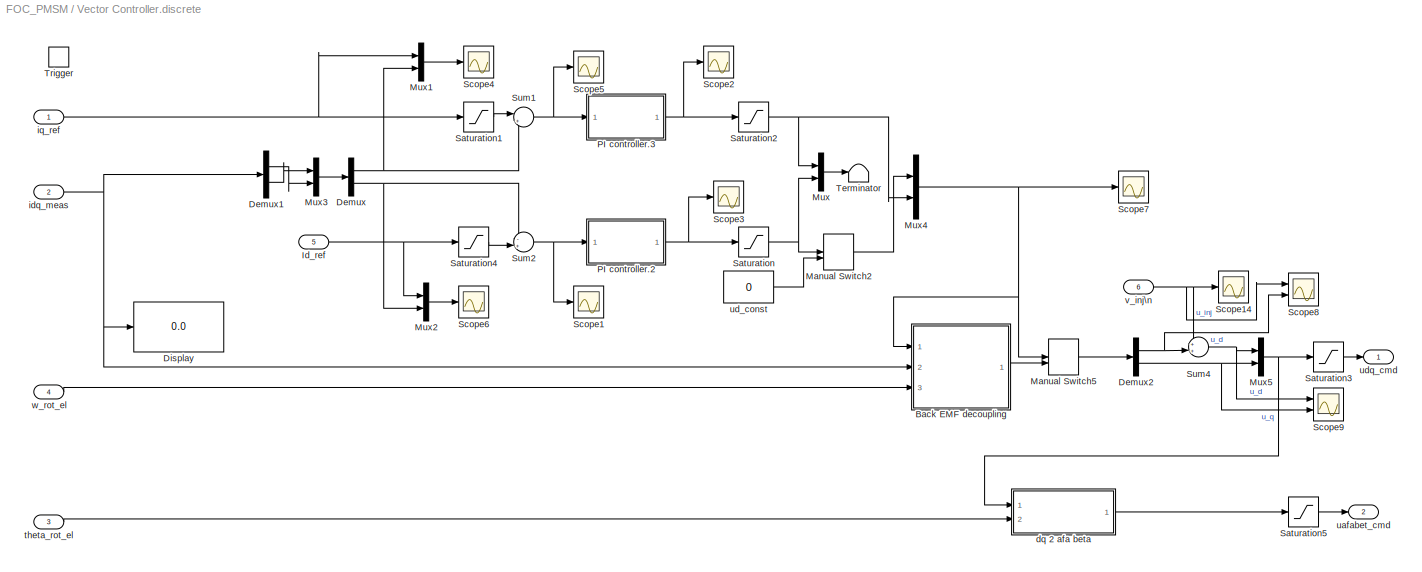
BLOCK [SubSystem] Vector Controller.discrete
  Ports = [6, 2, 0, 1]
  RequestExecContextInheritance = off
  SID = 843
BLOCK [SubSystem] Vector Controller.discrete/Back EMF decoupling
  Ports = [3, 1]
  RequestExecContextInheritance = off
  SID = 849
BLOCK [Demux] Vector Controller.discrete/Back EMF decoupling/Demux1
  DisplayOption = bar
  Outputs = 2
  Ports = [1, 2]
  SID = 853
BLOCK [Demux] Vector Controller.discrete/Back EMF decoupling/Demux2
  DisplayOption = bar
  Outputs = 2
  Ports = [1, 2]
  SID = 854
BLOCK [Gain] Vector Controller.discrete/Back EMF decoupling/Gain
  Gain = Lq
  OutDataTypeStr = Inherit: Inherit via internal rule
  ParamDataTypeStr = Inherit: Inherit via internal rule
  SID = 855
  SaturateOnIntegerOverflow = off
BLOCK [Gain] Vector Controller.discrete/Back EMF decoupling/Gain1
  Gain = Ld
  OutDataTypeStr = Inherit: Inherit via internal rule
  ParamDataTypeStr = Inherit: Inherit via internal rule
  SID = 856
  SaturateOnIntegerOverflow = off
BLOCK [Constant] Vector Controller.discrete/Back EMF decoupling/Lndmpm
  SID = 857
  Value = Lndmpm
BLOCK [Mux] Vector Controller.discrete/Back EMF decoupling/Mux2
  DisplayOption = bar
  Inputs = 2
  Ports = [2, 1]
  SID = 858
BLOCK [Product] Vector Controller.discrete/Back EMF decoupling/Product
  InputSameDT = off
  OutDataTypeStr = Inherit: Inherit via internal rule
  Ports = [2, 1]
  SID = 859
  SaturateOnIntegerOverflow = off
BLOCK [Product] Vector Controller.discrete/Back EMF decoupling/Product1
  InputSameDT = off
  OutDataTypeStr = Inherit: Inherit via internal rule
  Ports = [2, 1]
  SID = 860
  SaturateOnIntegerOverflow = off
BLOCK [Product] Vector Controller.discrete/Back EMF decoupling/Product2
  InputSameDT = off
  OutDataTypeStr = Inherit: Inherit via internal rule
  Ports = [2, 1]
  SID = 861
  SaturateOnIntegerOverflow = off
BLOCK [Sum] Vector Controller.discrete/Back EMF decoupling/Sum
  IconShape = round
  InputSameDT = off
  Inputs = |+-
  OutDataTypeStr = Inherit: Inherit via internal rule
  Ports = [2, 1]
  SID = 862
  SaturateOnIntegerOverflow = off
BLOCK [Sum] Vector Controller.discrete/Back EMF decoupling/Sum1
  IconShape = round
  InputSameDT = off
  Inputs = |++
  OutDataTypeStr = Inherit: Inherit via internal rule
  Ports = [2, 1]
  SID = 863
  SaturateOnIntegerOverflow = off
BLOCK [Sum] Vector Controller.discrete/Back EMF decoupling/Sum2
  IconShape = round
  InputSameDT = off
  Inputs = |++
  OutDataTypeStr = Inherit: Inherit via internal rule
  Ports = [2, 1]
  SID = 864
  SaturateOnIntegerOverflow = off
BLOCK [Inport] Vector Controller.discrete/Back EMF decoupling/idq_meas
  IconDisplay = Port number
  Port = 2
  SID = 851
BLOCK [Outport] Vector Controller.discrete/Back EMF decoupling/udq_cmd
  IconDisplay = Port number
  SID = 865
  VectorParamsAs1DForOutWhenUnconnected = off
BLOCK [Inport] Vector Controller.discrete/Back EMF decoupling/vdq,PI
  IconDisplay = Port number
  SID = 850
BLOCK [Inport] Vector Controller.discrete/Back EMF decoupling/wr
  IconDisplay = Port number
  Port = 3
  SID = 852
BLOCK [Demux] Vector Controller.discrete/Demux
  DisplayOption = bar
  Outputs = 2
  Ports = [1, 2]
  SID = 866
BLOCK [Demux] Vector Controller.discrete/Demux1
  DisplayOption = bar
  Outputs = 2
  Ports = [1, 2]
  SID = 867
BLOCK [Demux] Vector Controller.discrete/Demux2
  DisplayOption = bar
  Outputs = 2
  Ports = [1, 2]
  SID = 3889
BLOCK [Display] Vector Controller.discrete/Display
  Decimation = 1
  Ports = [1]
  SID = 868
BLOCK [Inport] Vector Controller.discrete/Id_ref
  IconDisplay = Port number
  Port = 5
  SID = 969
BLOCK [ManualSwitch] Vector Controller.discrete/Manual Switch2
  SID = 870
BLOCK [ManualSwitch] Vector Controller.discrete/Manual Switch5
  SID = 871
BLOCK [Mux] Vector Controller.discrete/Mux
  DisplayOption = bar
  Inputs = 2
  Ports = [2, 1]
  SID = 872
BLOCK [Mux] Vector Controller.discrete/Mux1
  DisplayOption = bar
  Inputs = 2
  Ports = [2, 1]
  SID = 873
BLOCK [Mux] Vector Controller.discrete/Mux2
  DisplayOption = bar
  Inputs = 2
  Ports = [2, 1]
  SID = 874
BLOCK [Mux] Vector Controller.discrete/Mux3
  DisplayOption = bar
  Inputs = 2
  Ports = [2, 1]
  SID = 875
BLOCK [Mux] Vector Controller.discrete/Mux4
  DisplayOption = bar
  Inputs = 2
  Ports = [2, 1]
  SID = 876
BLOCK [Mux] Vector Controller.discrete/Mux5
  DisplayOption = bar
  Inputs = 2
  Ports = [2, 1]
  SID = 3890
BLOCK [SubSystem] Vector Controller.discrete/PI controller.2
  Ports = [1, 1]
  RequestExecContextInheritance = off
  SID = 877
BLOCK [DiscreteIntegrator] Vector Controller.discrete/PI controller.2/Discrete-Time\nIntegrator
  ICPrevOutput = DiscIntNeverNeededParam
  ICPrevScaledInput = DiscIntNeverNeededParam
  Ports = [1, 1]
  SID = 879
  SampleTime = -1
BLOCK [Gain] Vector Controller.discrete/PI controller.2/Kp
  Gain = Kp2
  OutDataTypeStr = Inherit: Inherit via internal rule
  ParamDataTypeStr = Inherit: Inherit via internal rule
  SID = 880
  SaturateOnIntegerOverflow = off
BLOCK [Sum] Vector Controller.discrete/PI controller.2/Sum1
  IconShape = round
  InputSameDT = off
  Inputs = |++
  OutDataTypeStr = Inherit: Inherit via internal rule
  Ports = [2, 1]
  SID = 881
  SaturateOnIntegerOverflow = off
BLOCK [Inport] Vector Controller.discrete/PI controller.2/id_err
  IconDisplay = Port number
  SID = 878
BLOCK [Gain] Vector Controller.discrete/PI controller.2/ki
  Gain = Ki2
  OutDataTypeStr = Inherit: Inherit via internal rule
  ParamDataTypeStr = Inherit: Inherit via internal rule
  SID = 882
  SaturateOnIntegerOverflow = off
BLOCK [Outport] Vector Controller.discrete/PI controller.2/vd
  IconDisplay = Port number
  SID = 883
  VectorParamsAs1DForOutWhenUnconnected = off
BLOCK [SubSystem] Vector Controller.discrete/PI controller.3
  Ports = [1, 1]
  RequestExecContextInheritance = off
  SID = 884
BLOCK [DiscreteIntegrator] Vector Controller.discrete/PI controller.3/Discrete-Time\nIntegrator
  ICPrevOutput = DiscIntNeverNeededParam
  ICPrevScaledInput = DiscIntNeverNeededParam
  Ports = [1, 1]
  SID = 886
  SampleTime = -1
BLOCK [Gain] Vector Controller.discrete/PI controller.3/Kp
  Gain = 8
  OutDataTypeStr = Inherit: Inherit via internal rule
  ParamDataTypeStr = Inherit: Inherit via internal rule
  SID = 887
  SaturateOnIntegerOverflow = off
BLOCK [Sum] Vector Controller.discrete/PI controller.3/Sum1
  IconShape = round
  InputSameDT = off
  Inputs = |++
  OutDataTypeStr = Inherit: Inherit via internal rule
  Ports = [2, 1]
  SID = 888
  SaturateOnIntegerOverflow = off
BLOCK [Inport] Vector Controller.discrete/PI controller.3/iq_err
  IconDisplay = Port number
  SID = 885
BLOCK [Gain] Vector Controller.discrete/PI controller.3/ki
  Gain = 5000
  OutDataTypeStr = Inherit: Inherit via internal rule
  ParamDataTypeStr = Inherit: Inherit via internal rule
  SID = 889
  SaturateOnIntegerOverflow = off
BLOCK [Outport] Vector Controller.discrete/PI controller.3/vq
  IconDisplay = Port number
  SID = 890
  VectorParamsAs1DForOutWhenUnconnected = off
BLOCK [Saturate] Vector Controller.discrete/Saturation
  InputPortMap = u0
  LowerLimit = -Vph
  Ports = [1, 1]
  SID = 891
  UpperLimit = Vph
BLOCK [Saturate] Vector Controller.discrete/Saturation1
  InputPortMap = u0
  LowerLimit = -Iphmax
  Ports = [1, 1]
  SID = 892
  UpperLimit = Iphmax
BLOCK [Saturate] Vector Controller.discrete/Saturation2
  InputPortMap = u0
  LowerLimit = -Vph
  Ports = [1, 1]
  SID = 893
  UpperLimit = Vph
BLOCK [Saturate] Vector Controller.discrete/Saturation3
  InputPortMap = u0
  LowerLimit = -Vph
  Ports = [1, 1]
  SID = 2651
  UpperLimit = Vph
BLOCK [Saturate] Vector Controller.discrete/Saturation4
  InputPortMap = u0
  LowerLimit = -Iphmax
  Ports = [1, 1]
  SID = 894
  UpperLimit = Iphmax
BLOCK [Saturate] Vector Controller.discrete/Saturation5
  InputPortMap = u0
  LowerLimit = -Vph
  Ports = [1, 1]
  SID = 2652
  UpperLimit = Vph
BLOCK [Scope] Vector Controller.discrete/Scope1
  Floating = off
  NumInputPorts = 1
  Ports = [1]
  SID = 895
  ScopeSpecificationString = C++SS(StrPVP('Location','[1, 48, 1367, 727]'),StrPVP('Open','off'),StrPVP('ZoomMode','xonly'),MxPVP('AxesTitles',54,'struct(''axes1'',''%<SignalLabel>'')'),StrPVP('ShowLegends','off'),StrPVP('SaveName','ScopeData18'),StrPVP('DataFormat','StructureWithTime'),StrPVP('LimitDataPoints','off'),StrPVP('BlockParamSampleTime','0'),StrPVP('Decimation','1'),StrPVP('BlockParamSampleInput','off'))
BLOCK [Scope] Vector Controller.discrete/Scope14
  Floating = off
  NumInputPorts = 1
  Ports = [1]
  SID = 3895
  ScopeSpecificationString = Simulink.scopes.TimeScopeBlockCfg('CurrentConfiguration', extmgr.ConfigurationSet(extmgr.Configuration('Core','General UI',true),extmgr.Configuration('Core','Source UI',true),extmgr.Configuration('Sources','WiredSimulink',true,'DataLoggingVariableName','ScopeData2'),extmgr.Configuration('Visuals','Time Domain',true,'SerializedDisplays',{struct('MinYLimReal','-5.625','MaxYLimReal','50.625','YLabelR...<+1455ch>
BLOCK [Scope] Vector Controller.discrete/Scope2
  Floating = off
  NumInputPorts = 1
  Ports = [1]
  SID = 896
  ScopeSpecificationString = Simulink.scopes.TimeScopeBlockCfg('CurrentConfiguration', extmgr.ConfigurationSet(extmgr.Configuration('Core','General UI',true),extmgr.Configuration('Core','Source UI',true),extmgr.Configuration('Sources','WiredSimulink',true,'DataLoggingVariableName','ScopeData20','DataLoggingSaveFormat','StructureWithTime','DataLoggingDecimation','1','DataLoggingDecimateData',true),extmgr.Configuration('Visuals...<+1605ch>
BLOCK [Scope] Vector Controller.discrete/Scope3
  Floating = off
  NumInputPorts = 1
  Ports = [1]
  SID = 897
  ScopeSpecificationString = Simulink.scopes.TimeScopeBlockCfg('CurrentConfiguration', extmgr.ConfigurationSet(extmgr.Configuration('Core','General UI',true),extmgr.Configuration('Core','Source UI',true),extmgr.Configuration('Sources','WiredSimulink',true,'DataLoggingVariableName','ScopeData21','DataLoggingSaveFormat','StructureWithTime','DataLoggingDecimation','1','DataLoggingDecimateData',true),extmgr.Configuration('Visuals...<+877ch>
BLOCK [Scope] Vector Controller.discrete/Scope4
  Floating = off
  NumInputPorts = 1
  Ports = [1]
  SID = 898
  ScopeSpecificationString = Simulink.scopes.TimeScopeBlockCfg('CurrentConfiguration', extmgr.ConfigurationSet(extmgr.Configuration('Core','General UI',true),extmgr.Configuration('Core','Source UI',true),extmgr.Configuration('Sources','WiredSimulink',true,'DataLoggingVariableName','ScopeData5','DataLoggingSaveFormat','StructureWithTime','DataLoggingDecimation','1','DataLoggingDecimateData',true),extmgr.Configuration('Visuals'...<+1791ch>
BLOCK [Scope] Vector Controller.discrete/Scope5
  Floating = off
  NumInputPorts = 1
  Ports = [1]
  SID = 899
  ScopeSpecificationString = Simulink.scopes.TimeScopeBlockCfg('CurrentConfiguration', extmgr.ConfigurationSet(extmgr.Configuration('Core','General UI',true),extmgr.Configuration('Core','Source UI',true),extmgr.Configuration('Sources','WiredSimulink',true,'DataLoggingVariableName','ScopeData14','DataLoggingSaveFormat','StructureWithTime','DataLoggingDecimation','1','DataLoggingDecimateData',true),extmgr.Configuration('Visuals...<+877ch>
BLOCK [Scope] Vector Controller.discrete/Scope6
  Floating = off
  NumInputPorts = 1
  Ports = [1]
  SID = 900
  ScopeSpecificationString = Simulink.scopes.TimeScopeBlockCfg('CurrentConfiguration', extmgr.ConfigurationSet(extmgr.Configuration('Core','General UI',true),extmgr.Configuration('Core','Source UI',true),extmgr.Configuration('Sources','WiredSimulink',true,'DataLoggingVariableName','ScopeData8','DataLoggingSaveFormat','StructureWithTime','DataLoggingDecimation','1','DataLoggingDecimateData',true),extmgr.Configuration('Visuals'...<+1802ch>
BLOCK [Scope] Vector Controller.discrete/Scope7
  Floating = off
  NumInputPorts = 1
  Ports = [1]
  SID = 982
  ScopeSpecificationString = C++SS(StrPVP('Location','[350, 309, 931, 666]'),StrPVP('Open','off'),MxPVP('AxesTitles',54,'struct(''axes1'',''%<SignalLabel>'')'),StrPVP('ShowLegends','off'),StrPVP('YMin','-10'),StrPVP('YMax','17.5'),StrPVP('SaveName','ScopeData30'),StrPVP('DataFormat','StructureWithTime'),StrPVP('LimitDataPoints','off'),StrPVP('BlockParamSampleTime','0'),StrPVP('Decimation','1'),StrPVP('BlockParamSampleInput','...<+6ch>
BLOCK [Scope] Vector Controller.discrete/Scope8
  Floating = off
  NumInputPorts = 2
  Ports = [2]
  SID = 4024
  ScopeSpecificationString = Simulink.scopes.TimeScopeBlockCfg('CurrentConfiguration', extmgr.ConfigurationSet(extmgr.Configuration('Core','General UI',true),extmgr.Configuration('Core','Source UI',true),extmgr.Configuration('Sources','WiredSimulink',true,'DataLoggingVariableName','ScopeData1'),extmgr.Configuration('Visuals','Time Domain',true,'SerializedDisplays',{struct('MinYLimReal','-25.91918','MaxYLimReal','50.625','YLab...<+1465ch>
BLOCK [Scope] Vector Controller.discrete/Scope9
  Floating = off
  NumInputPorts = 2
  Ports = [2]
  SID = 4025
  ScopeSpecificationString = Simulink.scopes.TimeScopeBlockCfg('CurrentConfiguration', extmgr.ConfigurationSet(extmgr.Configuration('Core','General UI',true),extmgr.Configuration('Core','Source UI',true),extmgr.Configuration('Sources','WiredSimulink',true,'DataLoggingVariableName','ScopeData2'),extmgr.Configuration('Visuals','Time Domain',true,'SerializedDisplays',{struct('MinYLimReal','-50.06446','MaxYLimReal','95.2757','YLa...<+1469ch>
BLOCK [Sum] Vector Controller.discrete/Sum1
  IconShape = round
  InputSameDT = off
  Inputs = |+-
  OutDataTypeStr = Inherit: Inherit via internal rule
  Ports = [2, 1]
  SID = 901
  SaturateOnIntegerOverflow = off
BLOCK [Sum] Vector Controller.discrete/Sum2
  IconShape = round
  InputSameDT = off
  Inputs = -+|
  OutDataTypeStr = Inherit: Inherit via internal rule
  Ports = [2, 1]
  SID = 902
  SaturateOnIntegerOverflow = off
BLOCK [Sum] Vector Controller.discrete/Sum4
  IconShape = round
  InputSameDT = off
  Inputs = ++|
  OutDataTypeStr = Inherit: Inherit via internal rule
  Ports = [2, 1]
  SID = 3891
  SaturateOnIntegerOverflow = off
BLOCK [Terminator] Vector Controller.discrete/Terminator
  SID = 903
BLOCK [TriggerPort] Vector Controller.discrete/Trigger
  Ports = []
  SID = 848
  StatesWhenEnabling = held
  VariantControl = (inherit)
BLOCK [SubSystem] Vector Controller.discrete/dq 2 afa beta
  Ports = [2, 1]
  RequestExecContextInheritance = off
  SID = 904
BLOCK [Mux] Vector Controller.discrete/dq 2 afa beta/Mux1
  DisplayOption = bar
  Inputs = 2
  Ports = [2, 1]
  SID = 907
BLOCK [Mux] Vector Controller.discrete/dq 2 afa beta/Mux2
  DisplayOption = bar
  Inputs = 2
  Ports = [2, 1]
  SID = 908
BLOCK [Outport] Vector Controller.discrete/dq 2 afa beta/afa beta
  IconDisplay = Port number
  SID = 911
  VectorParamsAs1DForOutWhenUnconnected = off
BLOCK [Inport] Vector Controller.discrete/dq 2 afa beta/dq
  IconDisplay = Port number
  SID = 905
BLOCK [Fcn] Vector Controller.discrete/dq 2 afa beta/dq2afa
  Expr = u(1)*cos(u(3))-u(2)*sin(u(3))
  SID = 909
BLOCK [Fcn] Vector Controller.discrete/dq 2 afa beta/dq2beta
  Expr = u(1)*sin(u(3))+u(2)*cos(u(3))
  SID = 910
BLOCK [Inport] Vector Controller.discrete/dq 2 afa beta/theta
  IconDisplay = Port number
  Port = 2
  SID = 906
BLOCK [Inport] Vector Controller.discrete/idq_meas
  IconDisplay = Port number
  Port = 2
  SID = 845
BLOCK [Inport] Vector Controller.discrete/iq_ref
  IconDisplay = Port number
  SID = 844
BLOCK [Inport] Vector Controller.discrete/theta_rot_el
  IconDisplay = Port number
  Port = 3
  SID = 846
BLOCK [Outport] Vector Controller.discrete/uafabet_cmd
  IconDisplay = Port number
  Port = 2
  SID = 914
  VectorParamsAs1DForOutWhenUnconnected = off
BLOCK [Constant] Vector Controller.discrete/ud_const
  SID = 912
  Value = 0
BLOCK [Outport] Vector Controller.discrete/udq_cmd
  IconDisplay = Port number
  SID = 913
  VectorParamsAs1DForOutWhenUnconnected = off
BLOCK [Inport] Vector Controller.discrete/v_inj\n
  IconDisplay = Port number
  Port = 6
  SID = 3943
BLOCK [Inport] Vector Controller.discrete/w_rot_el
  IconDisplay = Port number
  Port = 4
  SID = 847
BLOCK [ZeroOrderHold] Zero-Order\nHold1
  SID = 922
  SampleTime = 1/5e3
BLOCK [SubSystem] afabet 2 abc
  Ports = [1, 1]
  RequestExecContextInheritance = off
  SID = 3151
BLOCK [Constant] afabet 2 abc/Constant
  SID = 3153
  Value = 0
BLOCK [Mux] afabet 2 abc/Mux1
  DisplayOption = bar
  Inputs = 2
  Ports = [2, 1]
  SID = 3154
BLOCK [Mux] afabet 2 abc/Mux2
  DisplayOption = bar
  Inputs = 3
  Ports = [3, 1]
  SID = 3155
BLOCK [Outport] afabet 2 abc/abc
  IconDisplay = Port number
  SID = 3159
  VectorParamsAs1DForOutWhenUnconnected = off
BLOCK [Inport] afabet 2 abc/afabet
  IconDisplay = Port number
  SID = 3152
BLOCK [Fcn] afabet 2 abc/qd2a
  Expr = u(1)+u(3)
  SID = 3156
BLOCK [Fcn] afabet 2 abc/qd2b
  Expr = u(1)*cos(2/3*pi)+u(2)*sin(2/3*pi)+u(3)
  SID = 3157
BLOCK [Fcn] afabet 2 abc/qd2c
  Expr = u(1)*cos(2/3*pi)-u(2)*sin(2/3*pi)+u(3)
  SID = 3158
BLOCK [Gain] el2mec
  Gain = 1/Npp
  OutDataTypeStr = Inherit: Inherit via internal rule
  ParamDataTypeStr = Inherit: Inherit via internal rule
  SID = 3165
  SaturateOnIntegerOverflow = off
BLOCK [From] iqd_meas.1
  CloseFcn = tagdialog Close
  GotoTag = Omega_rot_el
  SID = 935
BLOCK [Goto] iqd_meas.10
  GotoTag = speed_ref
  SID = 4018
BLOCK [Goto] iqd_meas.11
  GotoTag = vabc_cmd
  SID = 3160
BLOCK [From] iqd_meas.12
  CloseFcn = tagdialog Close
  GotoTag = vabc_cmd
  SID = 3129
BLOCK [Goto] iqd_meas.13
  GotoTag = Tload_cmd
  SID = 939
BLOCK [From] iqd_meas.14
  CloseFcn = tagdialog Close
  GotoTag = Tload_cmd
  SID = 3130
BLOCK [Goto] iqd_meas.15
  GotoTag = Te_meas
  SID = 3131
BLOCK [Goto] iqd_meas.16
  GotoTag = iabc_meas
  SID = 3134
  TagVisibility = global
BLOCK [Goto] iqd_meas.17
  GotoTag = vafabet_cmd
  SID = 942
BLOCK [From] iqd_meas.18
  CloseFcn = tagdialog Close
  GotoTag = vafabet_cmd
  SID = 3161
BLOCK [From] iqd_meas.19
  CloseFcn = tagdialog Close
  GotoTag = n_rot_mec
  SID = 944
BLOCK [From] iqd_meas.2
  CloseFcn = tagdialog Close
  GotoTag = idq_meas
  SID = 945
  TagVisibility = global
BLOCK [Goto] iqd_meas.20
  GotoTag = Flkg_abc
  SID = 3135
BLOCK [Goto] iqd_meas.22
  GotoTag = id
  SID = 3853
BLOCK [Goto] iqd_meas.27
  GotoTag = Flkg_afabet
  SID = 3132
BLOCK [From] iqd_meas.3
  CloseFcn = tagdialog Close
  GotoTag = theta_rot_el
  SID = 947
  TagVisibility = global
BLOCK [From] iqd_meas.39
  CloseFcn = tagdialog Close
  GotoTag = theta_rot_el_meas
  SID = 951
  TagVisibility = global
BLOCK [Goto] iqd_meas.4
  GotoTag = vdq_cmd
  SID = 952
BLOCK [Goto] iqd_meas.5
  GotoTag = didiq_dt
  SID = 3128
BLOCK [From] iqd_meas.6
  CloseFcn = tagdialog Close
  GotoTag = n_rot_mec
  SID = 955
BLOCK [Goto] iqd_meas.7
  GotoTag = Iq_command
  SID = 3167
BLOCK [Goto] iqd_meas.8
  GotoTag = Omega_rot_el
  SID = 3133
BLOCK [From] iqd_meas.9
  CloseFcn = tagdialog Close
  GotoTag = Iq_command
  SID = 3169
BLOCK [SubSystem] n_ref
  ClipboardFcn = sigbuilder_block('clipboard');
  CloseFcn = sigbuilder_block('close');
  ContinueFcn = sigbuilder_block('continue')
  CopyFcn = sigbuilder_block('copy');
  DeleteFcn = sigbuilder_block('delete');
  LoadFcn = sigbuilder_block('load');
  MaskHideContents = on
  ModelCloseFcn = sigbuilder_block('modelClose');
  NameChangeFcn = sigbuilder_block('namechange');
  OpenFcn = sigbuilder_block('open',[72.75 116.25 550.5 363.75 ]);
  PauseFcn = sigbuilder_block('pause')
  Ports = [0, 1]
  PreSaveFcn = sigbuilder_block('preSave');
  RequestExecContextInheritance = off
  SID = 960
  StartFcn = sigbuilder_block('start');
  StopFcn = sigbuilder_block('stop');
  Tag = STV Subsys
BLOCK [Demux] n_ref/Demux
  Outputs = 1
  Ports = [1, 1]
  SID = 961
  Tag = STV Demux
BLOCK [FromWorkspace] n_ref/FromWs
  SID = 962
  SampleTime = 0
  SigBuilderData = DataTag0
  Tag = STV FromWs
  VariableName = tuvar
  VnvData = DataTag1
  ZeroCross = on
BLOCK [Outport] n_ref/n
  IconDisplay = Port number
  SID = 963
  Tag = STV Outport
  VectorParamsAs1DForOutWhenUnconnected = off
BLOCK [Gain] rad2rpm
  Gain = 30/pi
  OutDataTypeStr = Inherit: Inherit via internal rule
  ParamDataTypeStr = Inherit: Inherit via internal rule
  SID = 3136
  SaturateOnIntegerOverflow = off
BLOCK [Goto] theta_rot_el.1
  GotoTag = theta_rot_el_meas
  SID = 3137
  TagVisibility = global
BLOCK [Goto] theta_rot_el.2
  GotoTag = n_rot_el
  SID = 3138
BLOCK [Goto] theta_rot_el.3
  GotoTag = theta_rot_el
  SID = 967
  TagVisibility = global
BLOCK [Goto] theta_rot_el.4
  GotoTag = n_rot_mec
  SID = 3166
ANNOTATION (root): FOC_PMSM
ANNOTATION (root): entender bien las referencias que les estamos dando
ANNOTATION (root): probad a ver su funciona sin valor inicial de integrador de velocidad
ANNOTATION PMSM motor: Lnd_d
ANNOTATION PMSM motor: Lnd_q
ANNOTATION PMSM motor: el. rotor speed
LINE Const. iq_ref:1 -> Manual Switch1:2
LINE Constant1:1 -> Vector Controller.discrete:5
LINE Constant2:1 -> Multiport\nSwitch:3
LINE Constant:1 -> Manual Switch3:2
LINE Current 3//2 \ntransformation/Detect peak/Clock:1 -> Current 3//2 \ntransformation/Detect peak/Compare\nTo Constant:1
LINE Current 3//2 \ntransformation/Detect peak/Compare\nTo Constant:1 -> Current 3//2 \ntransformation/Detect peak/Product:1
LINE Current 3//2 \ntransformation/Detect peak/Demux1:1 -> Current 3//2 \ntransformation/Detect peak/Product:2
LINE Current 3//2 \ntransformation/Detect peak/Demux1:2 -> Current 3//2 \ntransformation/Detect peak/Terminator1:1
LINE Current 3//2 \ntransformation/Detect peak/Demux1:3 -> Current 3//2 \ntransformation/Detect peak/Terminator:1
NET Current 3//2 \ntransformation/Detect peak/MinMax:1 -> Current 3//2 \ntransformation/Detect peak/Peak:1, Current 3//2 \ntransformation/Detect peak/Unit Delay:1
LINE Current 3//2 \ntransformation/Detect peak/Product:1 -> Current 3//2 \ntransformation/Detect peak/MinMax:1
LINE Current 3//2 \ntransformation/Detect peak/Unit Delay:1 -> Current 3//2 \ntransformation/Detect peak/MinMax:2
LINE Current 3//2 \ntransformation/Detect peak/iabc:1 -> Current 3//2 \ntransformation/Detect peak/Demux1:1
LINE Current 3//2 \ntransformation/Detect peak:1 -> Current 3//2 \ntransformation/Display:1
NET Current 3//2 \ntransformation/Manual Switch7:1 -> Current 3//2 \ntransformation/Detect peak:1, Current 3//2 \ntransformation/abc 2 dq:1
NET Current 3//2 \ntransformation/abc 2 dq/Mux1:1 -> Current 3//2 \ntransformation/abc 2 dq/abc2d:1, Current 3//2 \ntransformation/abc 2 dq/abc2q:1
LINE Current 3//2 \ntransformation/abc 2 dq/Mux2:1 -> Current 3//2 \ntransformation/abc 2 dq/dq:1
LINE Current 3//2 \ntransformation/abc 2 dq/abc2d:1 -> Current 3//2 \ntransformation/abc 2 dq/Mux2:1
LINE Current 3//2 \ntransformation/abc 2 dq/abc2q:1 -> Current 3//2 \ntransformation/abc 2 dq/Mux2:2
LINE Current 3//2 \ntransformation/abc 2 dq/abc:1 -> Current 3//2 \ntransformation/abc 2 dq/Mux1:1
LINE Current 3//2 \ntransformation/abc 2 dq/theta:1 -> Current 3//2 \ntransformation/abc 2 dq/Mux1:2
NET Current 3//2 \ntransformation/abc 2 dq:1 -> Current 3//2 \ntransformation/Scope6:1, Current 3//2 \ntransformation/dq 2 afa beta:1, Current 3//2 \ntransformation/iqd_meas.1:1
NET Current 3//2 \ntransformation/dq 2 afa beta/Mux1:1 -> Current 3//2 \ntransformation/dq 2 afa beta/dq2afa:1, Current 3//2 \ntransformation/dq 2 afa beta/dq2beta:1
LINE Current 3//2 \ntransformation/dq 2 afa beta/Mux2:1 -> Current 3//2 \ntransformation/dq 2 afa beta/afa beta:1
LINE Current 3//2 \ntransformation/dq 2 afa beta/dq2afa:1 -> Current 3//2 \ntransformation/dq 2 afa beta/Mux2:1
LINE Current 3//2 \ntransformation/dq 2 afa beta/dq2beta:1 -> Current 3//2 \ntransformation/dq 2 afa beta/Mux2:2
LINE Current 3//2 \ntransformation/dq 2 afa beta/dq:1 -> Current 3//2 \ntransformation/dq 2 afa beta/Mux1:1
LINE Current 3//2 \ntransformation/dq 2 afa beta/theta:1 -> Current 3//2 \ntransformation/dq 2 afa beta/Mux1:2
NET Current 3//2 \ntransformation/dq 2 afa beta:1 -> Current 3//2 \ntransformation/Scope14:1, Current 3//2 \ntransformation/iqd_meas.7:1
NET Current 3//2 \ntransformation/iqd_meas.20:1 -> Current 3//2 \ntransformation/Display1:1, Current 3//2 \ntransformation/abc 2 dq:2, Current 3//2 \ntransformation/dq 2 afa beta:2
NET Current 3//2 \ntransformation/iqd_meas.21:1 -> Current 3//2 \ntransformation/Manual Switch7:1, Current 3//2 \ntransformation/Manual Switch7:2
NET Demux1:1 -> Mux3:1, Scope7:1
NET Demux1:2 -> Mux3:2, Scope8:1
LINE From1:1 -> Gain1:1
LINE From2:1 -> Triggered\nSubsystem:1
NET From3:1 -> Manual Switch4:1, Scope9:1
LINE From4:1 -> Triggered\nSubsystem:2
NET From:1 -> Manual Switch2:1, Scope:1
NET Gain1:1 -> Manual Switch:1, Mux1:1
LINE Gain2:1 -> Sum1:2
LINE Gain3:1 -> iqd_meas.10:1
LINE Gain:1 -> Manual Switch3:1
LINE Load Selection:1 -> Multiport\nSwitch:1
NET Load torque/Add:1 -> Load torque/Scope2:1, Load torque/T_load:1
LINE Load torque/Step\nLoad torque 1:1 -> Load torque/Add:2
LINE Load torque/Step\nLoad torque2:1 -> Load torque/Add:3
LINE Load torque/Tload:1 -> Load torque/Add:1
NET Load torque:1 -> Gain2:1, Multiport\nSwitch:4
NET Manual Switch1:1 -> Scope6:1, Vector Controller.discrete:1
LINE Manual Switch2:1 -> Vector Controller.discrete:3
NET Manual Switch3:1 -> Gain3:1, Mux1:3, Sum:2
LINE Manual Switch4:1 -> Vector Controller.discrete:4
NET Manual Switch5:1 -> Multiport\nSwitch1:1, Scope10:1
LINE Manual Switch:1 -> Sum:1
LINE Multiport\nSwitch1:1 -> theta_rot_el.3:1
LINE Multiport\nSwitch:1 -> iqd_meas.13:1
LINE Mux1:1 -> Scope5:1
LINE Mux3:1 -> afabet 2 abc:1
LINE PMSM motor/1//J:1 -> PMSM motor/Int.6:1
NET PMSM motor/1//Ld.1:1 -> PMSM motor/Mux:1, PMSM motor/id.1:1, PMSM motor/id\n\n\n:1
LINE PMSM motor/1//Ld.2:1 -> PMSM motor/Mux2:1
NET PMSM motor/1//Lq.1:1 -> PMSM motor/Mux:2, PMSM motor/iq.1:1
LINE PMSM motor/1//Lq.2:1 -> PMSM motor/Mux2:2
LINE PMSM motor/3//2Npp:1 -> PMSM motor/Te.2:1
LINE PMSM motor/Add:1 -> PMSM motor/3//2Npp:1
LINE PMSM motor/Clock:1 -> PMSM motor/qd2a:1
LINE PMSM motor/Const. Omeg:1 -> PMSM motor/Manual Switch:1
LINE PMSM motor/Constant2:1 -> PMSM motor/Relational\nOperator2:2
LINE PMSM motor/Demux:1 -> PMSM motor/vd:1
LINE PMSM motor/Demux:2 -> PMSM motor/vq:1
NET PMSM motor/Gain1:1 -> PMSM motor/Relational\nOperator2:1, PMSM motor/Theta.el1:1
LINE PMSM motor/Ini. rotor pos. (rad):1 -> PMSM motor/Multiport\nSwitch:2
NET PMSM motor/Int.1:1 -> PMSM motor/1//Lq.1:1, PMSM motor/Lndq:1, PMSM motor/Prod.2:2, PMSM motor/Scope8:1
NET PMSM motor/Int.2:1 -> PMSM motor/Lndd:1, PMSM motor/Prod.1:2, PMSM motor/Scope6:1, PMSM motor/Sum5:2
LINE PMSM motor/Int.6:1 -> PMSM motor/Npp:1
NET PMSM motor/Integrator1:1 -> PMSM motor/Gain1:1, PMSM motor/abc 2 dq:2, PMSM motor/dq 2 afa beta:2, PMSM motor/dq0 2 abc1:2, PMSM motor/dq0 2 abc:2, PMSM motor/the_rot_el:1
LINE PMSM motor/Lndd.1:1 -> PMSM motor/Product:2
LINE PMSM motor/Lndd.3:1 -> PMSM motor/Mux3:1
LINE PMSM motor/Lndq.1:1 -> PMSM motor/Product1:2
LINE PMSM motor/Lndq.2:1 -> PMSM motor/Mux3:2
NET PMSM motor/Manual Switch1:1 -> PMSM motor/Prod.1:1, PMSM motor/Prod.2:1
NET PMSM motor/Manual Switch:1 -> PMSM motor/Integrator1:1, PMSM motor/Omega.1:1
LINE PMSM motor/Multiport\nSwitch:1 -> PMSM motor/Integrator1:3
LINE PMSM motor/Mux1:1 -> PMSM motor/dq0 2 abc:1
NET PMSM motor/Mux2:1 -> PMSM motor/Scope1:1, PMSM motor/didiq_dt:1
LINE PMSM motor/Mux3:1 -> PMSM motor/dq 2 afa beta:1
LINE PMSM motor/Mux4:1 -> PMSM motor/dq0 2 abc1:1
NET PMSM motor/Mux:1 -> PMSM motor/Mux1:1, PMSM motor/Scope:1
LINE PMSM motor/Npp:1 -> PMSM motor/Manual Switch:2
LINE PMSM motor/Omega.2:1 -> PMSM motor/Manual Switch1:1
LINE PMSM motor/Omega.3:1 -> PMSM motor/Omega el.:1
LINE PMSM motor/Prod.1:1 -> PMSM motor/Sum1:2
LINE PMSM motor/Prod.2:1 -> PMSM motor/Sum3:1
LINE PMSM motor/Product1:1 -> PMSM motor/Add:2
LINE PMSM motor/Product:1 -> PMSM motor/Add:1
LINE PMSM motor/Relational\nOperator2:1 -> PMSM motor/Integrator1:2
LINE PMSM motor/Rotor peak PM flux linkage:1 -> PMSM motor/Sum5:1
LINE PMSM motor/Rs.1:1 -> PMSM motor/Sum:2
LINE PMSM motor/Rs.2:1 -> PMSM motor/Sum2:1
LINE PMSM motor/Sum15:1 -> PMSM motor/1//J:1
NET PMSM motor/Sum1:1 -> PMSM motor/1//Lq.2:1, PMSM motor/Int.1:1
LINE PMSM motor/Sum2:1 -> PMSM motor/Sum3:2
NET PMSM motor/Sum3:1 -> PMSM motor/1//Ld.2:1, PMSM motor/Int.2:1
LINE PMSM motor/Sum5:1 -> PMSM motor/1//Ld.1:1
LINE PMSM motor/Sum:1 -> PMSM motor/Sum1:1
LINE PMSM motor/Te.1:1 -> PMSM motor/Sum15:2
LINE PMSM motor/Te.3:1 -> PMSM motor/Te:1
LINE PMSM motor/Tl.1:1 -> PMSM motor/Sum15:1
LINE PMSM motor/Tload:1 -> PMSM motor/Tl:1
LINE PMSM motor/Vd.1:1 -> PMSM motor/Sum2:2
LINE PMSM motor/Vq.1:1 -> PMSM motor/Sum:1
LINE PMSM motor/Vq.2:1 -> PMSM motor/Mux4:1
LINE PMSM motor/Vq.3:1 -> PMSM motor/Mux4:2
NET PMSM motor/abc 2 dq/Mux1:1 -> PMSM motor/abc 2 dq/abc2d:1, PMSM motor/abc 2 dq/abc2q:1
LINE PMSM motor/abc 2 dq/Mux2:1 -> PMSM motor/abc 2 dq/dq:1
LINE PMSM motor/abc 2 dq/abc2d:1 -> PMSM motor/abc 2 dq/Mux2:2
LINE PMSM motor/abc 2 dq/abc2q:1 -> PMSM motor/abc 2 dq/Mux2:1
LINE PMSM motor/abc 2 dq/abc:1 -> PMSM motor/abc 2 dq/Mux1:1
LINE PMSM motor/abc 2 dq/theta:1 -> PMSM motor/abc 2 dq/Mux1:2
NET PMSM motor/abc 2 dq:1 -> PMSM motor/Demux:1, PMSM motor/Scope13:1
NET PMSM motor/dq 2 afa beta/Mux1:1 -> PMSM motor/dq 2 afa beta/dq2afa:1, PMSM motor/dq 2 afa beta/dq2beta:1
LINE PMSM motor/dq 2 afa beta/Mux2:1 -> PMSM motor/dq 2 afa beta/afa beta:1
LINE PMSM motor/dq 2 afa beta/dq2afa:1 -> PMSM motor/dq 2 afa beta/Mux2:1
LINE PMSM motor/dq 2 afa beta/dq2beta:1 -> PMSM motor/dq 2 afa beta/Mux2:2
LINE PMSM motor/dq 2 afa beta/dq:1 -> PMSM motor/dq 2 afa beta/Mux1:1
LINE PMSM motor/dq 2 afa beta/theta:1 -> PMSM motor/dq 2 afa beta/Mux1:2
LINE PMSM motor/dq 2 afa beta:1 -> PMSM motor/Flkg_afabet:1
NET PMSM motor/dq0 2 abc/Mux1:1 -> PMSM motor/dq0 2 abc/qd2a:1, PMSM motor/dq0 2 abc/qd2b:1, PMSM motor/dq0 2 abc/qd2c:1
LINE PMSM motor/dq0 2 abc/Mux2:1 -> PMSM motor/dq0 2 abc/abc:1
LINE PMSM motor/dq0 2 abc/dq0:1 -> PMSM motor/dq0 2 abc/Mux1:1
LINE PMSM motor/dq0 2 abc/qd2a:1 -> PMSM motor/dq0 2 abc/Mux2:1
LINE PMSM motor/dq0 2 abc/qd2b:1 -> PMSM motor/dq0 2 abc/Mux2:2
LINE PMSM motor/dq0 2 abc/qd2c:1 -> PMSM motor/dq0 2 abc/Mux2:3
LINE PMSM motor/dq0 2 abc/theta:1 -> PMSM motor/dq0 2 abc/Mux1:2
NET PMSM motor/dq0 2 abc1/Mux1:1 -> PMSM motor/dq0 2 abc1/qd2a:1, PMSM motor/dq0 2 abc1/qd2b:1, PMSM motor/dq0 2 abc1/qd2c:1
LINE PMSM motor/dq0 2 abc1/Mux2:1 -> PMSM motor/dq0 2 abc1/abc:1
LINE PMSM motor/dq0 2 abc1/dq0:1 -> PMSM motor/dq0 2 abc1/Mux1:1
LINE PMSM motor/dq0 2 abc1/qd2a:1 -> PMSM motor/dq0 2 abc1/Mux2:1
LINE PMSM motor/dq0 2 abc1/qd2b:1 -> PMSM motor/dq0 2 abc1/Mux2:2
LINE PMSM motor/dq0 2 abc1/qd2c:1 -> PMSM motor/dq0 2 abc1/Mux2:3
LINE PMSM motor/dq0 2 abc1/theta:1 -> PMSM motor/dq0 2 abc1/Mux1:2
LINE PMSM motor/dq0 2 abc1:1 -> PMSM motor/Flkg_abc:1
LINE PMSM motor/dq0 2 abc:1 -> PMSM motor/iabc:1
LINE PMSM motor/i0:1 -> PMSM motor/Mux1:2
LINE PMSM motor/id.2:1 -> PMSM motor/Rs.2:1
LINE PMSM motor/id.5:1 -> PMSM motor/Product1:1
LINE PMSM motor/iq.2:1 -> PMSM motor/Rs.1:1
LINE PMSM motor/iq.4:1 -> PMSM motor/Product:1
LINE PMSM motor/qd2a:1 -> PMSM motor/Multiport\nSwitch:1
LINE PMSM motor/theta0.2:1 -> PMSM motor/Multiport\nSwitch:3
LINE PMSM motor/vabc:1 -> PMSM motor/abc 2 dq:1
LINE PMSM motor/zero:1 -> PMSM motor/Mux4:3
NET PMSM motor:1 -> iqd_meas.8:1, rad2rpm:1
NET PMSM motor:2 -> Scope2:1, iqd_meas.15:1
NET PMSM motor:3 -> Scope1:1, iqd_meas.16:1
NET PMSM motor:4 -> Scope4:1, theta_rot_el.1:1
LINE PMSM motor:5 -> iqd_meas.27:1
LINE PMSM motor:6 -> iqd_meas.20:1
LINE PMSM motor:7 -> iqd_meas.5:1
LINE PMSM motor:8 -> iqd_meas.22:1
LINE Position Select:1 -> Manual Switch5:1
NET Pulse\nGenerator2:1 -> Scope11:1, Vector Controller.discrete:trigger
LINE Pulse\nGenerator4:1 -> Speed PI controlle:trigger
LINE Pulse\nGenerator5:1 -> Vector Controller.discrete:6
LINE Speed PI controlle/Discrete-Time\nIntegrator:1 -> Speed PI controlle/Sum1:2
NET Speed PI controlle/Error:1 -> Speed PI controlle/Kp:1, Speed PI controlle/ki:1
LINE Speed PI controlle/Kp:1 -> Speed PI controlle/Sum1:1
LINE Speed PI controlle/Sum1:1 -> Speed PI controlle/iq_ref:1
LINE Speed PI controlle/ki:1 -> Speed PI controlle/Discrete-Time\nIntegrator:1
LINE Speed PI controlle:1 -> iqd_meas.7:1
LINE Step:1 -> Manual Switch5:2
LINE Sum1:1 -> Multiport\nSwitch:2
LINE Sum:1 -> Zero-Order\nHold1:1
LINE Tload_fan:1 -> Sum1:1
LINE Triggered\nSubsystem/Pulse\nGenerator1:1 -> Triggered\nSubsystem/Triggered\nSubsystem1:trigger
LINE Triggered\nSubsystem/Pulse\nGenerator2:1 -> Triggered\nSubsystem/Triggered\nSubsystem:trigger
LINE Triggered\nSubsystem/Triggered\nSubsystem/In1:1 -> Triggered\nSubsystem/Triggered\nSubsystem/abc 2 dq:1
LINE Triggered\nSubsystem/Triggered\nSubsystem/Memory:1 -> Triggered\nSubsystem/Triggered\nSubsystem/i_dq_old:1
NET Triggered\nSubsystem/Triggered\nSubsystem/abc 2 dq/Mux1:1 -> Triggered\nSubsystem/Triggered\nSubsystem/abc 2 dq/abc2d:1, Triggered\nSubsystem/Triggered\nSubsystem/abc 2 dq/abc2q:1
LINE Triggered\nSubsystem/Triggered\nSubsystem/abc 2 dq/Mux2:1 -> Triggered\nSubsystem/Triggered\nSubsystem/abc 2 dq/dq:1
LINE Triggered\nSubsystem/Triggered\nSubsystem/abc 2 dq/abc2d:1 -> Triggered\nSubsystem/Triggered\nSubsystem/abc 2 dq/Mux2:1
LINE Triggered\nSubsystem/Triggered\nSubsystem/abc 2 dq/abc2q:1 -> Triggered\nSubsystem/Triggered\nSubsystem/abc 2 dq/Mux2:2
LINE Triggered\nSubsystem/Triggered\nSubsystem/abc 2 dq/abc:1 -> Triggered\nSubsystem/Triggered\nSubsystem/abc 2 dq/Mux1:1
LINE Triggered\nSubsystem/Triggered\nSubsystem/abc 2 dq/theta:1 -> Triggered\nSubsystem/Triggered\nSubsystem/abc 2 dq/Mux1:2
NET Triggered\nSubsystem/Triggered\nSubsystem/abc 2 dq:1 -> Triggered\nSubsystem/Triggered\nSubsystem/Memory:1, Triggered\nSubsystem/Triggered\nSubsystem/i_dq:1
LINE Triggered\nSubsystem/Triggered\nSubsystem/theta:1 -> Triggered\nSubsystem/Triggered\nSubsystem/abc 2 dq:2
LINE Triggered\nSubsystem/Triggered\nSubsystem1/Constant1:1 -> Triggered\nSubsystem/Triggered\nSubsystem1/Mod1:2
LINE Triggered\nSubsystem/Triggered\nSubsystem1/Constant3:1 -> Triggered\nSubsystem/Triggered\nSubsystem1/Product:1
LINE Triggered\nSubsystem/Triggered\nSubsystem1/Constant4:1 -> Triggered\nSubsystem/Triggered\nSubsystem1/Product:2
LINE Triggered\nSubsystem/Triggered\nSubsystem1/Constant5:1 -> Triggered\nSubsystem/Triggered\nSubsystem1/Product:3
LINE Triggered\nSubsystem/Triggered\nSubsystem1/Constant6:1 -> Triggered\nSubsystem/Triggered\nSubsystem1/Relational\nOperator2:2
LINE Triggered\nSubsystem/Triggered\nSubsystem1/Constant7:1 -> Triggered\nSubsystem/Triggered\nSubsystem1/Sum:2
LINE Triggered\nSubsystem/Triggered\nSubsystem1/Constant:1 -> Triggered\nSubsystem/Triggered\nSubsystem1/Mod:2
LINE Triggered\nSubsystem/Triggered\nSubsystem1/Demux1:1 -> Triggered\nSubsystem/Triggered\nSubsystem1/Terminator1:1
NET Triggered\nSubsystem/Triggered\nSubsystem1/Demux1:2 -> Triggered\nSubsystem/Triggered\nSubsystem1/Scope1:2, Triggered\nSubsystem/Triggered\nSubsystem1/Sum3:2
LINE Triggered\nSubsystem/Triggered\nSubsystem1/Demux:1 -> Triggered\nSubsystem/Triggered\nSubsystem1/Terminator:1
NET Triggered\nSubsystem/Triggered\nSubsystem1/Demux:2 -> Triggered\nSubsystem/Triggered\nSubsystem1/Scope1:1, Triggered\nSubsystem/Triggered\nSubsystem1/Sum3:1
LINE Triggered\nSubsystem/Triggered\nSubsystem1/Discrete-Time\nIntegrator1:1 -> Triggered\nSubsystem/Triggered\nSubsystem1/Sum4:2
NET Triggered\nSubsystem/Triggered\nSubsystem1/Discrete-Time\nIntegrator2:1 -> Triggered\nSubsystem/Triggered\nSubsystem1/Gain2:1, Triggered\nSubsystem/Triggered\nSubsystem1/Mod:1
NET Triggered\nSubsystem/Triggered\nSubsystem1/Discrete-Time\nIntegrator3:1 -> Triggered\nSubsystem/Triggered\nSubsystem1/Gain3:1, Triggered\nSubsystem/Triggered\nSubsystem1/Mod1:1
NET Triggered\nSubsystem/Triggered\nSubsystem1/Discrete\nTransfer Fcn:1 -> Triggered\nSubsystem/Triggered\nSubsystem1/Discrete-Time\nIntegrator2:1, Triggered\nSubsystem/Triggered\nSubsystem1/w_est:1
NET Triggered\nSubsystem/Triggered\nSubsystem1/Divide:1 -> Triggered\nSubsystem/Triggered\nSubsystem1/Gain1:1, Triggered\nSubsystem/Triggered\nSubsystem1/Multiply1:1
LINE Triggered\nSubsystem/Triggered\nSubsystem1/Gain1:1 -> Triggered\nSubsystem/Triggered\nSubsystem1/Discrete-Time\nIntegrator1:1
LINE Triggered\nSubsystem/Triggered\nSubsystem1/Gain2:1 -> Triggered\nSubsystem/Triggered\nSubsystem1/Scope2:1
LINE Triggered\nSubsystem/Triggered\nSubsystem1/Gain3:1 -> Triggered\nSubsystem/Triggered\nSubsystem1/Scope3:1
LINE Triggered\nSubsystem/Triggered\nSubsystem1/Gain:1 -> Triggered\nSubsystem/Triggered\nSubsystem1/Sum:1
NET Triggered\nSubsystem/Triggered\nSubsystem1/Mod1:1 -> Triggered\nSubsystem/Triggered\nSubsystem1/Scope4:2, Triggered\nSubsystem/Triggered\nSubsystem1/theta_est:1
LINE Triggered\nSubsystem/Triggered\nSubsystem1/Mod:1 -> Triggered\nSubsystem/Triggered\nSubsystem1/Scope4:1
LINE Triggered\nSubsystem/Triggered\nSubsystem1/Multiply1:1 -> Triggered\nSubsystem/Triggered\nSubsystem1/Sum4:1
LINE Triggered\nSubsystem/Triggered\nSubsystem1/Multiply:1 -> Triggered\nSubsystem/Triggered\nSubsystem1/Divide:2
LINE Triggered\nSubsystem/Triggered\nSubsystem1/Product:1 -> Triggered\nSubsystem/Triggered\nSubsystem1/Multiply:1
LINE Triggered\nSubsystem/Triggered\nSubsystem1/Relational\nOperator2:1 -> Triggered\nSubsystem/Triggered\nSubsystem1/Gain:1
NET Triggered\nSubsystem/Triggered\nSubsystem1/Sum3:1 -> Triggered\nSubsystem/Triggered\nSubsystem1/Divide:1, Triggered\nSubsystem/Triggered\nSubsystem1/Scope15:1
NET Triggered\nSubsystem/Triggered\nSubsystem1/Sum4:1 -> Triggered\nSubsystem/Triggered\nSubsystem1/Discrete-Time\nIntegrator3:1, Triggered\nSubsystem/Triggered\nSubsystem1/Discrete\nTransfer Fcn:1
LINE Triggered\nSubsystem/Triggered\nSubsystem1/Sum:1 -> Triggered\nSubsystem/Triggered\nSubsystem1/Product1:2
LINE Triggered\nSubsystem/Triggered\nSubsystem1/i_dq:1 -> Triggered\nSubsystem/Triggered\nSubsystem1/Demux:1
LINE Triggered\nSubsystem/Triggered\nSubsystem1/i_dq_old:1 -> Triggered\nSubsystem/Triggered\nSubsystem1/Demux1:1
LINE Triggered\nSubsystem/Triggered\nSubsystem1/speed_Ref:1 -> Triggered\nSubsystem/Triggered\nSubsystem1/Discrete-Time\nIntegrator1:2
LINE Triggered\nSubsystem/Triggered\nSubsystem1:1 -> Triggered\nSubsystem/w_est:1
NET Triggered\nSubsystem/Triggered\nSubsystem1:2 -> Triggered\nSubsystem/Triggered\nSubsystem:2, Triggered\nSubsystem/theta_est:1
LINE Triggered\nSubsystem/Triggered\nSubsystem:1 -> Triggered\nSubsystem/Triggered\nSubsystem1:1
LINE Triggered\nSubsystem/Triggered\nSubsystem:2 -> Triggered\nSubsystem/Triggered\nSubsystem1:2
LINE Triggered\nSubsystem/i_abc:1 -> Triggered\nSubsystem/Triggered\nSubsystem:1
LINE Triggered\nSubsystem/speed_ref:1 -> Triggered\nSubsystem/Triggered\nSubsystem1:3
LINE Triggered\nSubsystem:1 -> Goto:1
LINE Triggered\nSubsystem:2 -> Goto1:1
LINE Unit Delay1:1 -> Multiport\nSwitch1:3
LINE Vector Controller.discrete/Back EMF decoupling/Demux1:1 -> Vector Controller.discrete/Back EMF decoupling/Sum:1
LINE Vector Controller.discrete/Back EMF decoupling/Demux1:2 -> Vector Controller.discrete/Back EMF decoupling/Sum1:1
LINE Vector Controller.discrete/Back EMF decoupling/Demux2:1 -> Vector Controller.discrete/Back EMF decoupling/Gain1:1
LINE Vector Controller.discrete/Back EMF decoupling/Demux2:2 -> Vector Controller.discrete/Back EMF decoupling/Gain:1
LINE Vector Controller.discrete/Back EMF decoupling/Gain1:1 -> Vector Controller.discrete/Back EMF decoupling/Product2:1
LINE Vector Controller.discrete/Back EMF decoupling/Gain:1 -> Vector Controller.discrete/Back EMF decoupling/Product1:2
LINE Vector Controller.discrete/Back EMF decoupling/Lndmpm:1 -> Vector Controller.discrete/Back EMF decoupling/Product:1
LINE Vector Controller.discrete/Back EMF decoupling/Mux2:1 -> Vector Controller.discrete/Back EMF decoupling/udq_cmd:1
LINE Vector Controller.discrete/Back EMF decoupling/Product1:1 -> Vector Controller.discrete/Back EMF decoupling/Sum:2
LINE Vector Controller.discrete/Back EMF decoupling/Product2:1 -> Vector Controller.discrete/Back EMF decoupling/Sum2:2
LINE Vector Controller.discrete/Back EMF decoupling/Product:1 -> Vector Controller.discrete/Back EMF decoupling/Sum1:2
LINE Vector Controller.discrete/Back EMF decoupling/Sum1:1 -> Vector Controller.discrete/Back EMF decoupling/Sum2:1
LINE Vector Controller.discrete/Back EMF decoupling/Sum2:1 -> Vector Controller.discrete/Back EMF decoupling/Mux2:2
LINE Vector Controller.discrete/Back EMF decoupling/Sum:1 -> Vector Controller.discrete/Back EMF decoupling/Mux2:1
LINE Vector Controller.discrete/Back EMF decoupling/idq_meas:1 -> Vector Controller.discrete/Back EMF decoupling/Demux2:1
LINE Vector Controller.discrete/Back EMF decoupling/vdq,PI:1 -> Vector Controller.discrete/Back EMF decoupling/Demux1:1
NET Vector Controller.discrete/Back EMF decoupling/wr:1 -> Vector Controller.discrete/Back EMF decoupling/Product1:1, Vector Controller.discrete/Back EMF decoupling/Product2:2, Vector Controller.discrete/Back EMF decoupling/Product:2
LINE Vector Controller.discrete/Back EMF decoupling:1 -> Vector Controller.discrete/Manual Switch5:2
LINE Vector Controller.discrete/Demux1:1 -> Vector Controller.discrete/Mux3:2
LINE Vector Controller.discrete/Demux1:2 -> Vector Controller.discrete/Mux3:1
NET Vector Controller.discrete/Demux2:1 -> Vector Controller.discrete/Scope8:2, Vector Controller.discrete/Sum4:2
NET Vector Controller.discrete/Demux2:2 -> Vector Controller.discrete/Mux5:2, Vector Controller.discrete/Scope9:2
NET Vector Controller.discrete/Demux:1 -> Vector Controller.discrete/Mux1:2, Vector Controller.discrete/Sum1:2
NET Vector Controller.discrete/Demux:2 -> Vector Controller.discrete/Mux2:2, Vector Controller.discrete/Sum2:1
NET Vector Controller.discrete/Id_ref:1 -> Vector Controller.discrete/Mux2:1, Vector Controller.discrete/Saturation4:1
LINE Vector Controller.discrete/Manual Switch2:1 -> Vector Controller.discrete/Mux4:1
LINE Vector Controller.discrete/Manual Switch5:1 -> Vector Controller.discrete/Demux2:1
LINE Vector Controller.discrete/Mux1:1 -> Vector Controller.discrete/Scope4:1
LINE Vector Controller.discrete/Mux2:1 -> Vector Controller.discrete/Scope6:1
LINE Vector Controller.discrete/Mux3:1 -> Vector Controller.discrete/Demux:1
NET Vector Controller.discrete/Mux4:1 -> Vector Controller.discrete/Back EMF decoupling:1, Vector Controller.discrete/Manual Switch5:1, Vector Controller.discrete/Scope7:1
NET Vector Controller.discrete/Mux5:1 -> Vector Controller.discrete/Saturation3:1, Vector Controller.discrete/dq 2 afa beta:1
LINE Vector Controller.discrete/Mux:1 -> Vector Controller.discrete/Terminator:1
LINE Vector Controller.discrete/PI controller.2/Discrete-Time\nIntegrator:1 -> Vector Controller.discrete/PI controller.2/Sum1:2
LINE Vector Controller.discrete/PI controller.2/Kp:1 -> Vector Controller.discrete/PI controller.2/Sum1:1
LINE Vector Controller.discrete/PI controller.2/Sum1:1 -> Vector Controller.discrete/PI controller.2/vd:1
NET Vector Controller.discrete/PI controller.2/id_err:1 -> Vector Controller.discrete/PI controller.2/Kp:1, Vector Controller.discrete/PI controller.2/ki:1
LINE Vector Controller.discrete/PI controller.2/ki:1 -> Vector Controller.discrete/PI controller.2/Discrete-Time\nIntegrator:1
NET Vector Controller.discrete/PI controller.2:1 -> Vector Controller.discrete/Saturation:1, Vector Controller.discrete/Scope3:1
LINE Vector Controller.discrete/PI controller.3/Discrete-Time\nIntegrator:1 -> Vector Controller.discrete/PI controller.3/Sum1:2
LINE Vector Controller.discrete/PI controller.3/Kp:1 -> Vector Controller.discrete/PI controller.3/Sum1:1
LINE Vector Controller.discrete/PI controller.3/Sum1:1 -> Vector Controller.discrete/PI controller.3/vq:1
NET Vector Controller.discrete/PI controller.3/iq_err:1 -> Vector Controller.discrete/PI controller.3/Kp:1, Vector Controller.discrete/PI controller.3/ki:1
LINE Vector Controller.discrete/PI controller.3/ki:1 -> Vector Controller.discrete/PI controller.3/Discrete-Time\nIntegrator:1
NET Vector Controller.discrete/PI controller.3:1 -> Vector Controller.discrete/Saturation2:1, Vector Controller.discrete/Scope2:1
LINE Vector Controller.discrete/Saturation1:1 -> Vector Controller.discrete/Sum1:1
NET Vector Controller.discrete/Saturation2:1 -> Vector Controller.discrete/Mux4:2, Vector Controller.discrete/Mux:1
LINE Vector Controller.discrete/Saturation3:1 -> Vector Controller.discrete/udq_cmd:1
LINE Vector Controller.discrete/Saturation4:1 -> Vector Controller.discrete/Sum2:2
LINE Vector Controller.discrete/Saturation5:1 -> Vector Controller.discrete/uafabet_cmd:1
NET Vector Controller.discrete/Saturation:1 -> Vector Controller.discrete/Manual Switch2:1, Vector Controller.discrete/Mux:2
NET Vector Controller.discrete/Sum1:1 -> Vector Controller.discrete/PI controller.3:1, Vector Controller.discrete/Scope5:1
NET Vector Controller.discrete/Sum2:1 -> Vector Controller.discrete/PI controller.2:1, Vector Controller.discrete/Scope1:1
NET Vector Controller.discrete/Sum4:1 -> Vector Controller.discrete/Mux5:1, Vector Controller.discrete/Scope9:1
NET Vector Controller.discrete/dq 2 afa beta/Mux1:1 -> Vector Controller.discrete/dq 2 afa beta/dq2afa:1, Vector Controller.discrete/dq 2 afa beta/dq2beta:1
LINE Vector Controller.discrete/dq 2 afa beta/Mux2:1 -> Vector Controller.discrete/dq 2 afa beta/afa beta:1
LINE Vector Controller.discrete/dq 2 afa beta/dq2afa:1 -> Vector Controller.discrete/dq 2 afa beta/Mux2:1
LINE Vector Controller.discrete/dq 2 afa beta/dq2beta:1 -> Vector Controller.discrete/dq 2 afa beta/Mux2:2
LINE Vector Controller.discrete/dq 2 afa beta/dq:1 -> Vector Controller.discrete/dq 2 afa beta/Mux1:1
LINE Vector Controller.discrete/dq 2 afa beta/theta:1 -> Vector Controller.discrete/dq 2 afa beta/Mux1:2
LINE Vector Controller.discrete/dq 2 afa beta:1 -> Vector Controller.discrete/Saturation5:1
NET Vector Controller.discrete/idq_meas:1 -> Vector Controller.discrete/Back EMF decoupling:2, Vector Controller.discrete/Demux1:1, Vector Controller.discrete/Display:1
NET Vector Controller.discrete/iq_ref:1 -> Vector Controller.discrete/Mux1:1, Vector Controller.discrete/Saturation1:1
LINE Vector Controller.discrete/theta_rot_el:1 -> Vector Controller.discrete/dq 2 afa beta:2
LINE Vector Controller.discrete/ud_const:1 -> Vector Controller.discrete/Manual Switch2:2
NET Vector Controller.discrete/v_inj\n:1 -> Vector Controller.discrete/Scope14:1, Vector Controller.discrete/Scope8:1, Vector Controller.discrete/Sum4:1
LINE Vector Controller.discrete/w_rot_el:1 -> Vector Controller.discrete/Back EMF decoupling:3
NET Vector Controller.discrete:1 -> Scope16:1, iqd_meas.4:1
LINE Vector Controller.discrete:2 -> iqd_meas.17:1
LINE Zero-Order\nHold1:1 -> Speed PI controlle:1
LINE afabet 2 abc/Constant:1 -> afabet 2 abc/Mux1:2
NET afabet 2 abc/Mux1:1 -> afabet 2 abc/qd2a:1, afabet 2 abc/qd2b:1, afabet 2 abc/qd2c:1
LINE afabet 2 abc/Mux2:1 -> afabet 2 abc/abc:1
LINE afabet 2 abc/afabet:1 -> afabet 2 abc/Mux1:1
LINE afabet 2 abc/qd2a:1 -> afabet 2 abc/Mux2:1
LINE afabet 2 abc/qd2b:1 -> afabet 2 abc/Mux2:2
LINE afabet 2 abc/qd2c:1 -> afabet 2 abc/Mux2:3
LINE afabet 2 abc:1 -> iqd_meas.11:1
LINE el2mec:1 -> theta_rot_el.4:1
LINE iqd_meas.12:1 -> PMSM motor:1
NET iqd_meas.14:1 -> PMSM motor:2, Scope12:1
LINE iqd_meas.18:1 -> Demux1:1
NET iqd_meas.19:1 -> Manual Switch:2, Mux1:2
NET iqd_meas.1:1 -> Manual Switch4:2, Scope9:2
LINE iqd_meas.2:1 -> Vector Controller.discrete:2
NET iqd_meas.39:1 -> Multiport\nSwitch1:2, Unit Delay1:1
NET iqd_meas.3:1 -> Manual Switch2:2, Scope:2
LINE iqd_meas.6:1 -> Tload_fan:1
LINE iqd_meas.9:1 -> Manual Switch1:1
LINE n_ref/Demux:1 -> n_ref/n:1
LINE n_ref/FromWs:1 -> n_ref/Demux:1
LINE n_ref:1 -> Gain:1
NET rad2rpm:1 -> Scope3:1, el2mec:1, theta_rot_el.2:1
note: NET lines group one-source signal fan-out (src -> all destinations, sorted); 1:1 wires keep LINE
